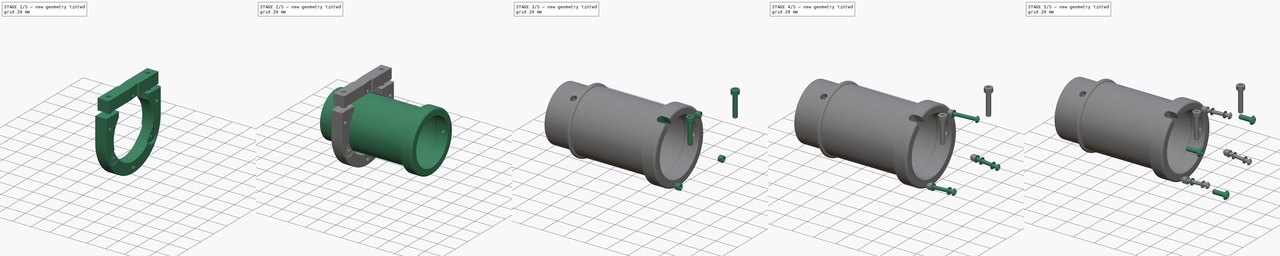
[diagram: build sequence overview — one tinted view per stage of 5, left to right]
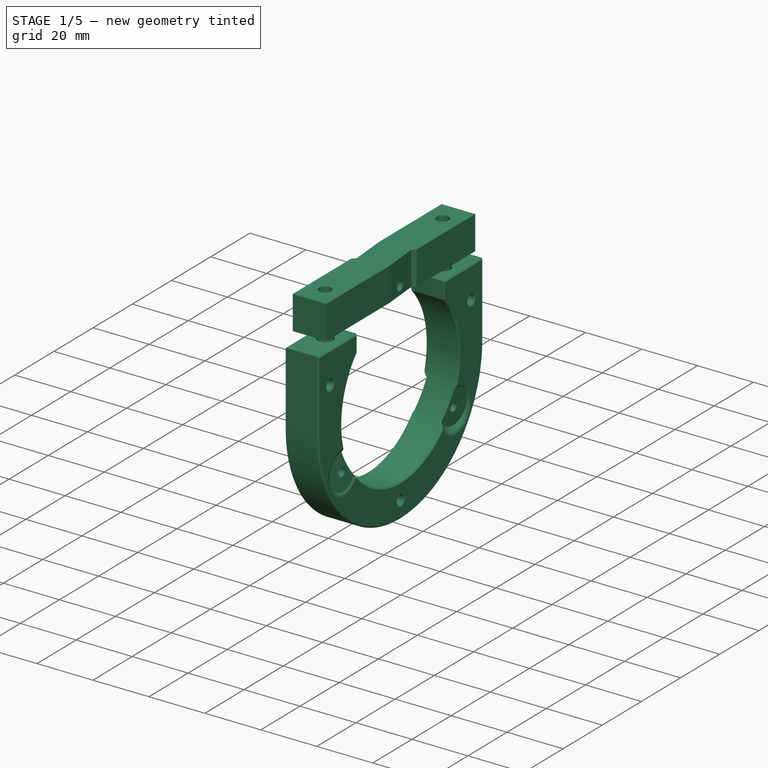
[diagram: stage 1 of 5 — iso view after this stage's code; geometry added in this stage tinted green]
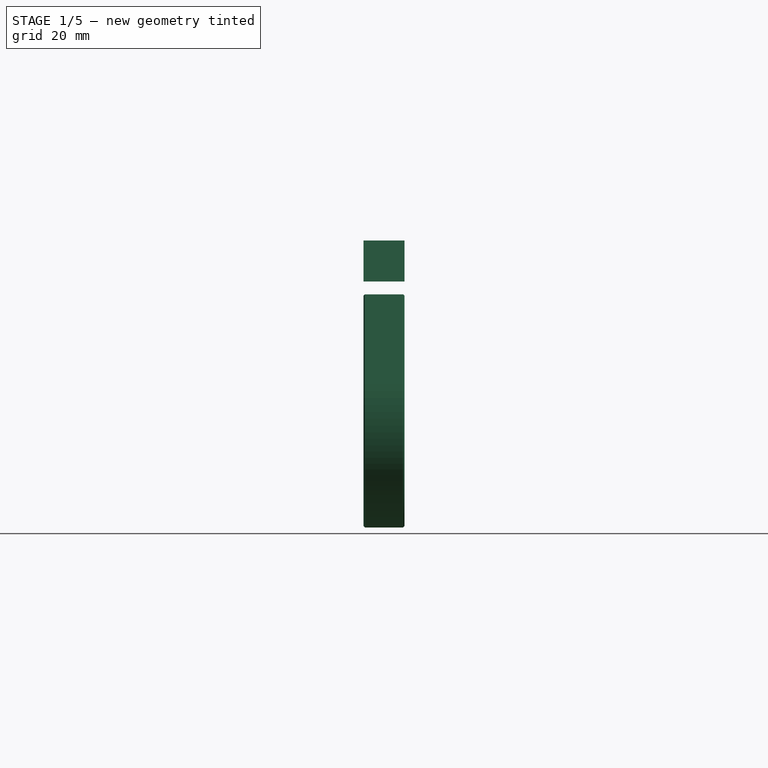
[diagram: stage 1 of 5 — front view after this stage's code; geometry added in this stage tinted green]
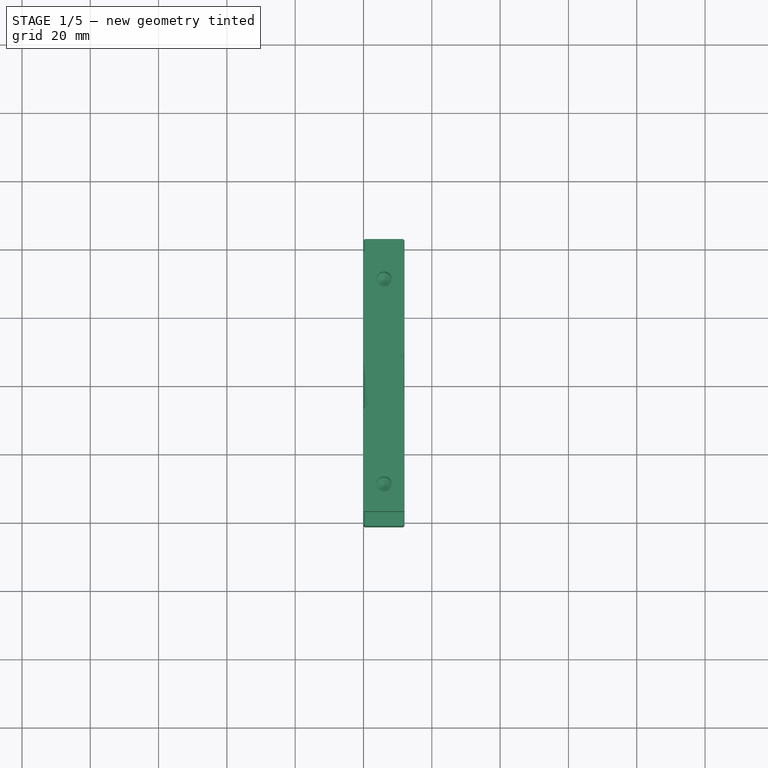
[diagram: stage 1 of 5 — top view after this stage's code; geometry added in this stage tinted green]
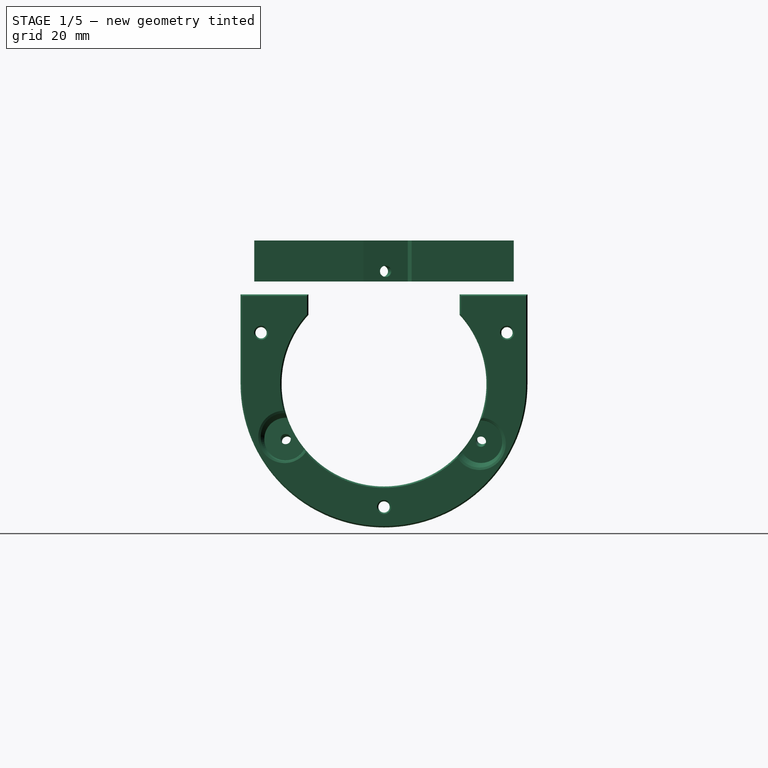
[diagram: stage 1 of 5 — right view after this stage's code; geometry added in this stage tinted green]
FCSTD DOCUMENT  (FreeCAD 0.21RUnknown)
Label: Focuser
License: All rights reserved
LicenseURL: http://en.wikipedia.org/wiki/All_rights_reserved
objects: PartDesign::CoordinateSystem×38, Sketcher::SketchObject×21, Part::FeaturePython×20, App::Link×19, PartDesign::Plane×12, PartDesign::Pocket×8, PartDesign::Body×7, PartDesign::Pad×4, PartDesign::Chamfer×4, PartDesign::Hole×3, App::DocumentObjectGroup×3, PartDesign::Revolution×2, PartDesign::PolarPattern×2, App::FeaturePython×1, App::Part×1, PartDesign::Line×1, PartDesign::Groove×1
note: 145 computed .brp shape members not serialized (recipe doc carries the construction recipe); baked Part::Feature solids carry a one-line shape summary decoded from their .brp
EXTERNAL_REF file=Common.FCStd obj=Spreadsheet
EXTERNAL_REF file=Common.FCStd obj=Local_CS193
EXTERNAL_REF file=Common.FCStd obj=Body022012
EXTERNAL_REF file=Common.FCStd obj=Local_CS194
EXTERNAL_REF file=Common.FCStd obj=Local_CS318
EXTERNAL_REF file=Common.FCStd obj=Body022061
EXTERNAL_REF file=Common.FCStd obj=Local_CS238
EXTERNAL_REF file=Common.FCStd obj=Body004
EXTERNAL_REF file=Common.FCStd obj=Local_CS237
EXTERNAL_REF file=Common.FCStd obj=Body005

FEATURE [Sketcher::SketchObject] Sketch023  label="FocuserSpring_Base_Sketch"
  FullyConstrained = true
  MapMode = 5
  Placement = pos=(0,0,0) rot=(0.57735,0.57735,0.57735;2.0944rad)
  Support = -> [YZ_Plane008]
  expr: Constraints[13] = <<Common>>#<<Parameters>>.foc_clampblock
  expr: Constraints[2] = <<Common>>#<<Parameters>>.foc_baseflange
  expr: Constraints[3] = <<Common>>#<<Parameters>>.foc_inner / 2 + <<Common>>#<<Parameters>>.foc_wall + <<Common>>#<<Parameters>>.foc_spacing
  expr: Constraints[4] = <<Common>>#<<Parameters>>.foc_springblock
  expr: Constraints[9] = <<Common>>#<<Parameters>>.fbearing_outer + <<Common>>#<<Parameters>>.sec_fthick * 4
  sketch-geometry (6):
    g0: LineSegment StartX=38 StartY=42 StartZ=0 EndX=38 EndY=30 EndZ=0
    g1: LineSegment StartX=-38 StartY=30 StartZ=0 EndX=-38 EndY=42 EndZ=0
    g2: LineSegment StartX=-22 StartY=30 StartZ=0 EndX=22 EndY=30 EndZ=0
    g3: LineSegment StartX=-11 StartY=42 StartZ=0 EndX=11 EndY=42 EndZ=0
    g4: LineSegment StartX=-38 StartY=42 StartZ=0 EndX=38 EndY=42 EndZ=0
    g5: LineSegment StartX=-38 StartY=30 StartZ=0 EndX=38 EndY=30 EndZ=0
  constraints (17):
    c: Vertical(g0)
    c: Vertical(g1)
    c: DistanceY(g0,g0) = 12
    c: DistanceY(g-1,g0) = 30
    c: DistanceX(g1,g0) = 76
    c: Symmetric(g0,g1,g-2)
    c: Symmetric(g2,g2,g-2)
    c: Symmetric(g3,g3,g-2)
    c: Equal(g0,g1)
    c: DistanceX(g3,g3) = 22
    c: Coincident(g4,g1)
    c: Coincident(g4,g0)
    c: PointOnObject(g3,g4)
    c: DistanceX(g1,g2) = 16
    c: Coincident(g5,g1)
    c: Coincident(g5,g0)
    c: PointOnObject(g2,g5)
FEATURE [PartDesign::Pad] Pad007  label="FocuserSpring_Base"
  Direction = (1,-2e-16,3e-16)
  Length = 12
  Length2 = 100
  Placement = pos=(0,0,0) rot=(0.57735,0.57735,0.57735;2.0944rad)
  Profile = -> Sketch023
  Type = 0
  expr: Length = <<Common>>#<<Parameters>>.foc_fheight
FEATURE [PartDesign::CoordinateSystem] Local_CS154  label="LCS_PlateMount_ZF"
  AttacherType = Attacher::AttachEngine3D
  AttachmentOffset = pos=(-90,71,0) rot=(0,0,1;3.14159rad)
  MapMode = 5
  Placement = pos=(-3.57e-14,-90,71) rot=(0.57735,-0.57735,0.57735;4.18879rad)
  Support = -> [YZ_Plane014]
  expr: .AttachmentOffset.Base.x = -<<Common>>#<<Parameters>>.sec_sidebolt_y
  expr: .AttachmentOffset.Base.y = <<Common>>#<<Parameters>>.sec_sidebolt_upper_z - <<Common>>#<<Parameters>>.mirror_distance
FEATURE [PartDesign::CoordinateSystem] Local_CS155  label="LCS_PlateMount_ZA"
  AttacherType = Attacher::AttachEngine3D
  AttachmentOffset = pos=(90,71,0) rot=(0,0,1;0rad)
  MapMode = 5
  Placement = pos=(4.2e-15,90,71) rot=(0.57735,0.57735,0.57735;2.0944rad)
  Support = -> [YZ_Plane014]
  expr: .AttachmentOffset.Base.x = <<Common>>#<<Parameters>>.sec_sidebolt_y
  expr: .AttachmentOffset.Base.y = <<Common>>#<<Parameters>>.sec_sidebolt_upper_z - <<Common>>#<<Parameters>>.mirror_distance
FEATURE [PartDesign::CoordinateSystem] Local_CS156  label="LCS_PlateMount_NF"
  AttacherType = Attacher::AttachEngine3D
  AttachmentOffset = pos=(-90,-44,0) rot=(0,0,1;3.14159rad)
  MapMode = 5
  Placement = pos=(-1.02e-14,-90,-44) rot=(0.57735,-0.57735,0.57735;4.18879rad)
  Support = -> [YZ_Plane014]
  expr: .AttachmentOffset.Base.x = -<<Common>>#<<Parameters>>.sec_sidebolt_y
  expr: .AttachmentOffset.Base.y = <<Common>>#<<Parameters>>.sec_sidebolt_lower_z - <<Common>>#<<Parameters>>.mirror_distance
FEATURE [PartDesign::CoordinateSystem] Local_CS157  label="LCS_PlateMount_NA"
  AttacherType = Attacher::AttachEngine3D
  AttachmentOffset = pos=(90,-44,0) rot=(0,0,1;0rad)
  MapMode = 5
  Placement = pos=(2.98e-14,90,-44) rot=(0.57735,0.57735,0.57735;2.0944rad)
  Support = -> [YZ_Plane014]
  expr: .AttachmentOffset.Base.x = <<Common>>#<<Parameters>>.sec_sidebolt_y
  expr: .AttachmentOffset.Base.y = <<Common>>#<<Parameters>>.sec_sidebolt_lower_z - <<Common>>#<<Parameters>>.mirror_distance
FEATURE [PartDesign::CoordinateSystem] Local_CS201  label="LCS_PlateBaseMount_N"
  AttacherType = Attacher::AttachEngine3D
  AttachmentOffset = pos=(0,-36,0) rot=(0,0,1;0rad)
  MapMode = 5
  Placement = pos=(8e-15,-8e-15,-36) rot=(0.57735,0.57735,0.57735;2.0944rad)
  Support = -> [YZ_Plane014]
  expr: .AttachmentOffset.Base.y = -<<Common>>#<<Parameters>>.foc_mbrad
FEATURE [PartDesign::Pocket] Pocket021  label="FocuserSpring_Cut"
  BaseFeature = -> Pad007
  Direction = (0,0,-1)
  Length = 5
  Length2 = 100
  Midplane = true
  Placement = pos=(0,0,0) rot=(0.57735,0.57735,0.57735;2.0944rad)
  Profile = -> Sketch065
  Type = 1
FEATURE [PartDesign::Pocket] Pocket022  label="FocuserSpring_Shaft"
  BaseFeature = -> Pocket021
  Direction = (-0.996195,-0.0871557,-2e-16)
  Length = 5
  Length2 = 100
  Midplane = true
  Placement = pos=(0,0,0) rot=(0.57735,0.57735,0.57735;2.0944rad)
  Profile = -> Sketch025
  Type = 1
FEATURE [PartDesign::Body] Body008  label="FocuserSpring"
  Group = -> [Sketch023,Pad007,Sketch065,Pocket021,DatumPlane008,Sketch025,Pocket022,Local_CS041,Local_CS134,Local_CS043,Local_CS135,Local_CS045,Local_CS046,Chamfer004]
  Origin = -> Origin008
  Placement = pos=(122.7,0,835) rot=(0,0,1;0rad)
  Tip = -> Chamfer004
  expr: .Placement.Base.x = <<Common>>#<<Parameters>>.bolt_x + <<Common>>#<<Parameters>>.sec_poledia / 2 + <<Common>>#<<Parameters>>.sec_clamptol
  expr: .Placement.Base.z = <<Common>>#<<Parameters>>.mirror_distance
FEATURE [Sketcher::SketchObject] Sketch021  label="FocuserBase_Ring_Sketch"
  FullyConstrained = true
  MapMode = 5
  Placement = pos=(0,0,0) rot=(0.57735,0.57735,0.57735;2.0944rad)
  Support = -> [YZ_Plane057]
  expr: .Constraints.flange_inner = <<Common>>#<<Parameters>>.foc_inner / 2 + <<Common>>#<<Parameters>>.foc_wall + <<Common>>#<<Parameters>>.foc_spacing
  expr: .Constraints.flange_outer = .Constraints.flange_inner + <<Common>>#<<Parameters>>.foc_baseflange * 1 mm
  expr: Constraints[20] = <<Common>>#<<Parameters>>.foc_fthick * 1.5
  expr: Constraints[26] = max(<<Common>>#<<Parameters>>.foc_springblock * 1 mm; .Constraints.flange_outer * 2)
  expr: Constraints[30] = <<Common>>#<<Parameters>>.sec_fthick * 2
  sketch-geometry (14):
    g0: Circle CenterX=0 CenterY=0 CenterZ=0 NormalX=0 NormalY=0 NormalZ=1 AngleXU=0 Radius=30
    g1: Circle CenterX=0 CenterY=0 CenterZ=0 NormalX=0 NormalY=0 NormalZ=1 AngleXU=0 Radius=42
    g2: LineSegment StartX=0 StartY=0 StartZ=0 EndX=36.3731 EndY=-21 EndZ=0
    g3: LineSegment StartX=0 StartY=0 StartZ=0 EndX=-36.3731 EndY=-21 EndZ=0
    g4: LineSegment StartX=-42 StartY=26.25 StartZ=0 EndX=-22.1345 EndY=26.25 EndZ=0
    g5: LineSegment StartX=22.1345 StartY=26.25 StartZ=0 EndX=42 EndY=26.25 EndZ=0
    g6: LineSegment StartX=-42 StartY=26.25 StartZ=0 EndX=-42 EndY=8.27963e-05 EndZ=0
    g7: LineSegment StartX=-22.1345 StartY=26.25 StartZ=0 EndX=-22.1345 EndY=20.25 EndZ=0
    g8: LineSegment StartX=22.1345 StartY=26.25 StartZ=0 EndX=22.1345 EndY=20.25 EndZ=0
    g9: LineSegment StartX=42 StartY=26.25 StartZ=0 EndX=42 EndY=8.27947e-05 EndZ=0
    g10: GeomPoint X=0 Y=30 Z=0
    g11: ArcOfCircle CenterX=0 CenterY=0 CenterZ=0 NormalX=0 NormalY=0 NormalZ=1 AngleXU=0 Radius=30 StartAngle=2.40063 EndAngle=7.02415
    g12: ArcOfCircle CenterX=0 CenterY=0 CenterZ=0 NormalX=0 NormalY=0 NormalZ=1 AngleXU=0 Radius=42 StartAngle=3.14159 EndAngle=4.71239
    g13: ArcOfCircle CenterX=0 CenterY=0 CenterZ=0 NormalX=0 NormalY=0 NormalZ=1 AngleXU=0 Radius=42 StartAngle=4.71239 EndAngle=6.28319
  constraints (37):
    c: Coincident(g0,g-1)
    c: Coincident(g1,g0)
    c: Radius(g0) = 30  'flange_inner'
    c: Radius(g1) = 42  'flange_outer'
    c: Coincident(g2,g0)
    c: Coincident(g3,g0)
    c: PointOnObject(g2,g1)
    c: Angle(g3,g2) = 2.0944
    c: Horizontal(g4)
    c: Horizontal(g5)
    c: Coincident(g6,g4)
    c: Coincident(g7,g4)
    c: Vertical(g7)
    c: Coincident(g8,g5)
    c: Vertical(g8)
    c: Coincident(g9,g5)
    c: Symmetric(g4,g5,g-2)
    c: Equal(g4,g5)
    c: PointOnObject(g10,g0)
    c: PointOnObject(g10,g-2)
    c: DistanceY(g4,g10) = 3.75
    c: Coincident(g11,g-1)
    c: Coincident(g12,g11)
    c: Coincident(g12,g6)
    c: Coincident(g13,g11)
    c: Coincident(g13,g9)
    c: DistanceX(g4,g5) = 84
    c: Equal(g12,g1)
    c: Tangent(g6,g12)
    c: Tangent(g9,g13)
    c: DistanceY(g7,g7) = 6
    c: Coincident(g11,g7)
    c: Coincident(g11,g8)
    c: PointOnObject(g7,g0)
    c: Coincident(g13,g12)
    c: PointOnObject(g12,g-2)
    c: Symmetric(g3,g2,g-2)
FEATURE [PartDesign::Pad] Pad006  label="FocuserBase_Ring"
  Direction = (1,-2e-16,3e-16)
  Length = 12
  Length2 = 100
  Placement = pos=(0,0,0) rot=(0.57735,0.57735,0.57735;2.0944rad)
  Profile = -> Sketch021
  Type = 0
  expr: Length = <<Common>>#<<Parameters>>.foc_fheight
FEATURE [PartDesign::Plane] DatumPlane015  label="FocuserBase_DatumPlane_SideCut"
  AttachmentOffset = pos=(6,28.5788,-16.5) rot=(1,0,0;1.0472rad)
  Length = 64.2201
  MapMode = 2
  Placement = pos=(6,28.5788,-16.5) rot=(1,0,0;1.0472rad)
  ResizeMode = 0
  Support = -> [XY_Plane057]
  Width = 115.326
  expr: .AttachmentOffset.Base.x = <<Common>>#<<Parameters>>.foc_fheight / 2
  expr: .AttachmentOffset.Base.y = (<<Common>>#<<Parameters>>.foc_inner / 2 + <<Common>>#<<Parameters>>.foc_wall + <<Common>>#<<Parameters>>.fbearing_outer / 2) * sin(60)
  expr: .AttachmentOffset.Base.z = -(<<Common>>#<<Parameters>>.foc_inner / 2 + <<Common>>#<<Parameters>>.foc_wall + <<Common>>#<<Parameters>>.fbearing_outer / 2) * cos(60)
FEATURE [PartDesign::Plane] DatumPlane016  label="FocuserBase_DatumPlane_SideShaft"
  AttachmentOffset = pos=(0,0,0) rot=(0,-1,0;0.087266rad)
  Length = 126.274
  MapMode = 4
  Placement = pos=(6,28.5788,-16.5) rot=(0.725486,0.178129,0.664786;2.75759rad)
  ResizeMode = 0
  Support = -> [DatumPlane015]
  Width = 128.065
  expr: .AttachmentOffset.Rotation.Pitch = -<<Common>>#<<Parameters>>.fbearing_tilt
FEATURE [PartDesign::Plane] DatumPlane011  label="FocuserBase_DatumPlane_SpringShaft"
  AttachmentOffset = pos=(6,0,26.25) rot=(0,0,1;0rad)
  Length = 62.9615
  MapMode = 5
  Placement = pos=(6,0,26.25) rot=(0,0,1;0rad)
  ResizeMode = 0
  Support = -> [XY_Plane057]
  Width = 96.9615
  expr: .AttachmentOffset.Base.x = <<Common>>#<<Parameters>>.foc_fheight / 2
  expr: .AttachmentOffset.Base.z = <<Common>>#<<Parameters>>.foc_inner / 2 + <<Common>>#<<Parameters>>.foc_wall + <<Common>>#<<Parameters>>.foc_spacing - <<Common>>#<<Parameters>>.foc_fthick * 1.5
FEATURE [Sketcher::SketchObject] Sketch067  label="FocuserBase_SpringShaft_Sketch"
  FullyConstrained = true
  MapMode = 5
  Placement = pos=(6,0,26.25) rot=(0,0,1;0rad)
  Support = -> [DatumPlane011]
  expr: Constraints[0] = <<Common>>#<<Parameters>>.sec_sidebolt * 1.1
  expr: Constraints[3] = <<Common>>#<<Parameters>>.foc_springblock - <<Common>>#<<Parameters>>.foc_clampblock
  sketch-geometry (2):
    g0: Circle CenterX=0 CenterY=30 CenterZ=0 NormalX=0 NormalY=0 NormalZ=1 AngleXU=0 Radius=2.2
    g1: Circle CenterX=0 CenterY=-30 CenterZ=0 NormalX=0 NormalY=0 NormalZ=1 AngleXU=0 Radius=2.2
  constraints (5):
    c: Diameter(g1) = 4.4
    c: Equal(g1,g0)
    c: Symmetric(g1,g0,g-1)
    c: DistanceY(g1,g0) = 60
    c: PointOnObject(g0,g-2)
FEATURE [PartDesign::Plane] DatumPlane017  label="FocuserBase_DatumPlane_FrontFace"
  AttachmentOffset = pos=(0,0,12) rot=(0,0,1;0rad)
  Length = 99.1433
  MapMode = 5
  Placement = pos=(12,-2.7e-15,2.7e-15) rot=(0.57735,0.57735,0.57735;2.0944rad)
  ResizeMode = 0
  Support = -> [YZ_Plane057]
  Width = 83.3933
  expr: .AttachmentOffset.Base.z = <<Common>>#<<Parameters>>.foc_fheight
FEATURE [PartDesign::CoordinateSystem] Local_CS130  label="LCS_TubeDatum"
  AttacherType = Attacher::AttachEngine3D
  AttachmentOffset = pos=(0,0,-12) rot=(0,0,1;0rad)
  MapMode = 5
  Placement = pos=(-12,2.7e-15,-2.7e-15) rot=(0.57735,0.57735,0.57735;2.0944rad)
  Support = -> [YZ_Plane057]
  expr: .AttachmentOffset.Base.z = -<<Common>>#<<Parameters>>.foc_fheight
FEATURE [Sketcher::SketchObject] Sketch077  label="FocuserBase_MountHoles_Sketch"
  FullyConstrained = true
  MapMode = 5
  Placement = pos=(12,-2.7e-15,2.7e-15) rot=(0.57735,0.57735,0.57735;2.0944rad)
  Support = -> [DatumPlane017]
  expr: Constraints[2] = <<Common>>#<<Parameters>>.sec_collbolt
  expr: Constraints[5] = <<Common>>#<<Parameters>>.foc_mbrad
  expr: Constraints[6] = <<Common>>#<<Parameters>>.foc_mbrad - <<Common>>#<<Parameters>>.foc_baseflange / 2 - <<Common>>#<<Parameters>>.sec_fthick - <<Common>>#<<Parameters>>.sec_sidebolt * 3
  expr: Constraints[7] = <<Common>>#<<Parameters>>.foc_mbrad
  sketch-geometry (3):
    g0: Circle CenterX=0 CenterY=-36 CenterZ=0 NormalX=0 NormalY=0 NormalZ=1 AngleXU=0 Radius=2
    g1: Circle CenterX=-36 CenterY=15 CenterZ=0 NormalX=0 NormalY=0 NormalZ=1 AngleXU=0 Radius=2
    g2: Circle CenterX=36 CenterY=15 CenterZ=0 NormalX=0 NormalY=0 NormalZ=1 AngleXU=0 Radius=2
  constraints (8):
    c: Symmetric(g1,g2,g-2)
    c: PointOnObject(g0,g-2)
    c: Diameter(g0) = 4
    c: Equal(g0,g1)
    c: Equal(g0,g2)
    c: DistanceY(g0,g-1) = 36
    c: DistanceY(g2) = 15
    c: DistanceX(g2) = 36
FEATURE [PartDesign::CoordinateSystem] Local_CS137  label="LCS_FocuserBase_MountN"
  AttacherType = Attacher::AttachEngine3D
  AttachmentOffset = pos=(0,-36,0) rot=(0,0,1;1.5708rad)
  MapMode = 5
  Placement = pos=(12,-6.7e-15,-36) rot=(0.707107,0,0.707107;3.14159rad)
  Support = -> [DatumPlane017]
  expr: .AttachmentOffset.Base.y = -<<Common>>#<<Parameters>>.foc_mbrad
FEATURE [PartDesign::Plane] DatumPlane027  label="FocuserBase_DatumPlane_NutCut"
  AttachmentOffset = pos=(0,0,-3) rot=(0,0,1;0rad)
  Length = 62.9615
  MapMode = 2
  Placement = pos=(6,0,23.25) rot=(0,0,1;0rad)
  ResizeMode = 0
  Support = -> [DatumPlane011]
  Width = 96.9615
  expr: .AttachmentOffset.Base.z = -<<Common>>#<<Parameters>>.sec_fthick
FEATURE [PartDesign::Line] DatumLine002  label="FocuserBase_DatumLine_SideShaft"
  AttacherType = Attacher::AttachEngineLine
  Length = 20
  MapMode = 18
  Placement = pos=(6,28.5788,-16.5) rot=(0.725486,0.178129,0.664786;2.75759rad)
  ResizeMode = 0
  Support = -> [DatumPlane016]
FEATURE [Sketcher::SketchObject] Sketch066  label="FocuserBase_SideCut_Sketch"
  ExternalGeometry = -> [Pad006,DatumLine002]
  FullyConstrained = true
  MapMode = 5
  Placement = pos=(6,28.5788,-16.5) rot=(1,0,0;1.0472rad)
  Support = -> [DatumPlane015]
  expr: Constraints[37] = (<<Common>>#<<Parameters>>.fbearing_outer + <<Common>>#<<Parameters>>.foc_fthick) / 2
  expr: Constraints[38] = <<Common>>#<<Parameters>>.fbearing_inner / 2
  sketch-geometry (21):
    g0: LineSegment StartX=-6.4 StartY=8.92025 StartZ=0 EndX=-7.12588 EndY=0.623433 EndZ=0
    g1: LineSegment StartX=5.6 StartY=5.78394 StartZ=0 EndX=7.85175 EndY=7.67338 EndZ=0
    g2: LineSegment StartX=7.85175 StartY=7.67338 StartZ=0 EndX=7.12588 EndY=-0.623433 EndZ=0
    g3: LineSegment StartX=-4.51055 StartY=6.6685 StartZ=0 EndX=5.6 EndY=5.78394 EndZ=0
    g4: LineSegment StartX=-6.4 StartY=8.92025 StartZ=0 EndX=-4.51055 EndY=6.6685 EndZ=0
    g5: LineSegment StartX=-4.92454 StartY=1.93657 StartZ=0 EndX=-4.51055 EndY=6.6685 EndZ=0
    g6: LineSegment StartX=5.18601 StartY=1.05201 StartZ=0 EndX=5.6 EndY=5.78394 EndZ=0
    g7: LineSegment StartX=4.51055 StartY=-6.6685 StartZ=0 EndX=6.4 EndY=-8.92025 EndZ=0
    g8: LineSegment StartX=-5.6 StartY=-5.78394 StartZ=0 EndX=4.51055 EndY=-6.6685 EndZ=0
    g9: LineSegment StartX=-4.92454 StartY=1.93657 StartZ=0 EndX=5.18601 EndY=1.05201 EndZ=0
    g10: LineSegment StartX=-7.12588 StartY=0.623433 StartZ=0 EndX=7.12588 EndY=-0.623433 EndZ=0
    g11: LineSegment StartX=-5.05528 StartY=0.442279 StartZ=0 EndX=-5.6 EndY=-5.78394 EndZ=0
    g12: LineSegment StartX=-5.05528 StartY=0.442279 StartZ=0 EndX=-4.92454 EndY=1.93657 EndZ=0
    g13: LineSegment StartX=7.12588 StartY=-0.623433 StartZ=0 EndX=6.4 EndY=-8.92025 EndZ=0
    g14: LineSegment StartX=-7.12588 StartY=0.623433 StartZ=0 EndX=-7.85175 EndY=-7.67338 EndZ=0
    g15: LineSegment StartX=-7.85175 StartY=-7.67338 StartZ=0 EndX=-5.6 EndY=-5.78394 EndZ=0
    g16: LineSegment StartX=5.6 StartY=5.78394 StartZ=0 EndX=6 EndY=5.78394 EndZ=0
    g17: LineSegment StartX=-6.4 StartY=8.92025 StartZ=0 EndX=-6 EndY=8.92025 EndZ=0
    g18: LineSegment StartX=-6 StartY=-5.78394 StartZ=0 EndX=-5.6 EndY=-5.78394 EndZ=0
    g19: LineSegment StartX=6.4 StartY=-8.92025 StartZ=0 EndX=6 EndY=-8.92025 EndZ=0
    g20: LineSegment StartX=5.18601 StartY=1.05201 StartZ=0 EndX=4.51055 EndY=-6.6685 EndZ=0
  constraints (59):
    c: Coincident(g4,g0)
    c: Parallel(g3,g-5)
    c: Coincident(g5,g4)
    c: Coincident(g5,g3)
    c: Coincident(g6,g1)
    c: Coincident(g6,g3)
    c: Coincident(g1,g2)
    c: Parallel(g5,g0)
    c: Parallel(g6,g2)
    c: Angle(g4,g5) = 2.35619
    c: Parallel(g8,g-5)
    c: Perpendicular(g-5,g0)
    c: Angle(g6,g1) = 2.35619
    c: Parallel(g5,g6)
    c: Equal(g5,g6)
    c: Coincident(g9,g5)
    c: Coincident(g9,g6)
    c: Coincident(g10,g0)
    c: Coincident(g10,g2)
    c: PointOnObject(g0,g-5)
    c: PointOnObject(g2,g-5)
    c: PointOnObject(g11,g10)
    c: Coincident(g11,g8)
    c: Coincident(g12,g11)
    c: Coincident(g12,g5)
    c: Coincident(g13,g2)
    c: Coincident(g13,g7)
    c: Coincident(g7,g8)
    c: PointOnObject(g11,g5)
    c: Equal(g13,g2)
    c: Equal(g2,g0)
    c: Coincident(g14,g0)
    c: Coincident(g15,g14)
    c: Coincident(g15,g8)
    c: PointOnObject(g14,g0)
    c: Parallel(g15,g1)
    c: Parallel(g7,g4)
    c: Distance(g11) = 6.25
    c: Distance(g12) = 1.5
    c: Coincident(g16,g1)
    c: PointOnObject(g16,g-3)
    c: Horizontal(g16)
    c: Coincident(g17,g0)
    c: PointOnObject(g17,g-4)
    c: Horizontal(g17)
    c: PointOnObject(g18,g-4)
    c: Coincident(g18,g8)
    c: Horizontal(g18)
    c: Coincident(g19,g7)
    c: PointOnObject(g19,g-3)
    c: Horizontal(g19)
    c: Equal(g19,g16)
    c: Equal(g16,g17)
    c: Equal(g17,g18)
    c: Parallel(g11,g12)
    c: Coincident(g20,g6)
    c: Coincident(g20,g7)
    c: Parallel(g20,g6)
    c: DistanceX(g17,g17) = 0.4
FEATURE [PartDesign::Groove] Groove  label="FocuserBase_SideCut"
  Angle = 360
  Axis = (0.996195,-0.0435779,-0.0754791)
  Base = (6,28.5788,-16.5)
  BaseFeature = -> Pad006
  Placement = pos=(0,0,0) rot=(0.57735,0.57735,0.57735;2.0944rad)
  Profile = -> Sketch066
  ReferenceAxis = -> DatumLine002
FEATURE [PartDesign::PolarPattern] PolarPattern  label="FocuserBase_PolarPattern"
  Angle = 360
  Axis = -> X_Axis057
  BaseFeature = -> Groove
  Occurrences = 3
  Originals = -> [Groove]
  Placement = pos=(0,0,0) rot=(0.57735,0.57735,0.57735;2.0944rad)
FEATURE [PartDesign::CoordinateSystem] Local_CS033  label="LCS_Bearing_Inner_NF"
  AttacherType = Attacher::AttachEngine3D
  MapMode = 11
  Placement = pos=(0.944723,-28.3577,-16.883) rot=(0.663579,-0.401957,-0.630947;2.47638rad)
  Support = -> [PolarPattern]
FEATURE [PartDesign::CoordinateSystem] Local_CS034  label="LCS_Bearing_Inner_NA"
  AttacherType = Attacher::AttachEngine3D
  MapMode = 11
  Placement = pos=(0.944723,28.8,-16.117) rot=(-0.644711,-0.352973,0.678055;2.36216rad)
  Support = -> [PolarPattern]
FEATURE [PartDesign::CoordinateSystem] Local_CS035  label="LCS_Bearing_Outer_NF"
  AttacherType = Attacher::AttachEngine3D
  MapMode = 11
  Placement = pos=(11.0553,-28.8,-16.117) rot=(0.644711,0.352973,0.678055;2.36216rad)
  Support = -> [PolarPattern]
FEATURE [PartDesign::CoordinateSystem] Local_CS036  label="LCS_Bearing_Outer_NA"
  AttacherType = Attacher::AttachEngine3D
  MapMode = 11
  Placement = pos=(11.0553,28.3577,-16.883) rot=(0.663579,-0.401957,0.630947;3.8068rad)
  Support = -> [PolarPattern]
FEATURE [PartDesign::Hole] Hole  label="FocuserBase_SpringShaft"
  BaseFeature = -> PolarPattern
  CustomThreadClearance = 0
  Depth = 8
  DepthType = 0
  Diameter = 4.5
  DrillForDepth = false
  DrillPoint = 1
  DrillPointAngle = 118
  HoleCutCountersinkAngle = 90
  HoleCutCustomValues = false
  HoleCutDepth = 4
  HoleCutDiameter = 5.6
  HoleCutType = 1
  ModelThread = false
  Placement = pos=(0,0,0) rot=(0.57735,0.57735,0.57735;2.0944rad)
  Profile = -> Sketch067
  Tapered = false
  TaperedAngle = 90
  ThreadClass = 0
  ThreadDepth = 8
  ThreadDepthType = 0
  ThreadDirection = 0
  ThreadFit = 0
  ThreadSize = 11
  ThreadType = 1
  Threaded = false
  UseCustomThreadClearance = false
  expr: HoleCutDiameter = Common#<<Parameters>>.acc_M4Bore
FEATURE [PartDesign::CoordinateSystem] Local_CS037  label="LCS_SpringNut_F"
  AttacherType = Attacher::AttachEngine3D
  MapMode = 11
  Placement = pos=(6,-30,26.25) rot=(0,0,1;3.14159rad)
  Support = -> [Hole]
FEATURE [PartDesign::CoordinateSystem] Local_CS038  label="LCS_SpringNut_A"
  AttacherType = Attacher::AttachEngine3D
  MapMode = 11
  Placement = pos=(6,30,26.25) rot=(0,0,1;3.14159rad)
  Support = -> [Hole]
FEATURE [PartDesign::CoordinateSystem] Local_CS132  label="LCS_SpringAttachment_F"
  AttacherType = Attacher::AttachEngine3D
  AttachmentOffset = pos=(0,0,3.75) rot=(0,0,1;0rad)
  MapMode = 11
  Placement = pos=(6,-30,30) rot=(0,0,1;3.14159rad)
  Support = -> [Hole]
  expr: .AttachmentOffset.Base.z = <<Common>>#<<Parameters>>.foc_fthick * 1.5
FEATURE [PartDesign::CoordinateSystem] Local_CS133  label="LCS_SpringAttachment_A"
  AttacherType = Attacher::AttachEngine3D
  AttachmentOffset = pos=(0,0,3.75) rot=(0,0,1;0rad)
  MapMode = 11
  Placement = pos=(6,30,30) rot=(0,0,1;3.14159rad)
  Support = -> [Hole]
  expr: .AttachmentOffset.Base.z = <<Common>>#<<Parameters>>.foc_fthick * 1.5
FEATURE [PartDesign::Hole] Hole051  label="FocuserBase_MountHoles"
  BaseFeature = -> Hole
  CustomThreadClearance = 0
  Depth = 219.967
  DepthType = 1
  Diameter = 3.3
  DrillForDepth = false
  DrillPoint = 1
  DrillPointAngle = 118
  HoleCutCountersinkAngle = 90
  HoleCutCustomValues = false
  HoleCutDepth = 0
  HoleCutDiameter = 6.1
  HoleCutType = 0
  ModelThread = false
  Placement = pos=(0,0,0) rot=(0.57735,0.57735,0.57735;2.0944rad)
  Profile = -> Sketch077
  Tapered = false
  TaperedAngle = 90
  ThreadClass = 0
  ThreadDepth = 219.967
  ThreadDepthType = 0
  ThreadDirection = 0
  ThreadFit = 0
  ThreadSize = 11
  ThreadType = 1
  Threaded = true
  UseCustomThreadClearance = false
FEATURE [PartDesign::Chamfer] Chamfer  label="FocuserBase_Chamfer"
  Angle = 45
  Base = -> Hole051 [Face5,Face4]
  BaseFeature = -> Hole051
  ChamferType = 0
  FlipDirection = false
  Placement = pos=(0,0,0) rot=(0.57735,0.57735,0.57735;2.0944rad)
  Size = 0.4
  Size2 = 1
  SupportTransform = false
  UseAllEdges = false
FEATURE [PartDesign::Body] Body022004  label="FocuserBase"
  Group = -> [Sketch021,Pad006,DatumPlane015,Sketch066,DatumPlane016,DatumPlane011,Sketch067,DatumPlane017,Local_CS130,Local_CS033,Local_CS034,Local_CS035,Local_CS036,Local_CS037,Local_CS038,Local_CS132,Local_CS133,Sketch077,Local_CS137,DatumPlane027,DatumLine002,Groove,PolarPattern,Hole,Hole051,Chamfer]
  Origin = -> Origin057
  Placement = pos=(123,0,835) rot=(0,0,1;0rad)
  Tip = -> Chamfer
  expr: .Placement.Base.x = <<Common>>#<<Parameters>>.bolt_x + <<Common>>#<<Parameters>>.sec_poledia / 2 + <<Common>>#<<Parameters>>.sec_spthick
  expr: .Placement.Base.z = <<Common>>#<<Parameters>>.mirror_distance
FEATURE [PartDesign::Body] Body022030  label="FocuserBaseCompat"
  Origin = -> Origin083
  Placement = pos=(123,0,835) rot=(0,0,1;0rad)
  expr: .Placement.Base.x = <<Common>>#<<Parameters>>.bolt_x + <<Common>>#<<Parameters>>.sec_poledia / 2 + <<Common>>#<<Parameters>>.sec_spthick
  expr: .Placement.Base.z = <<Common>>#<<Parameters>>.mirror_distance
FEATURE [App::DocumentObjectGroup] Parts
  Group = -> [Body022004,Body008,Body007,Body022005,Body022023,Body022029,Body022030]

RESOLVED EXTERNAL PARTS (link-assembly join: the EXTERNAL_REF files above that resolve inside this repo's crawl, each included once):
---- part Common.FCStd = doc fcstd_f532bfd99702 (72826 chars; too large to inline — full recipe in that document) ----
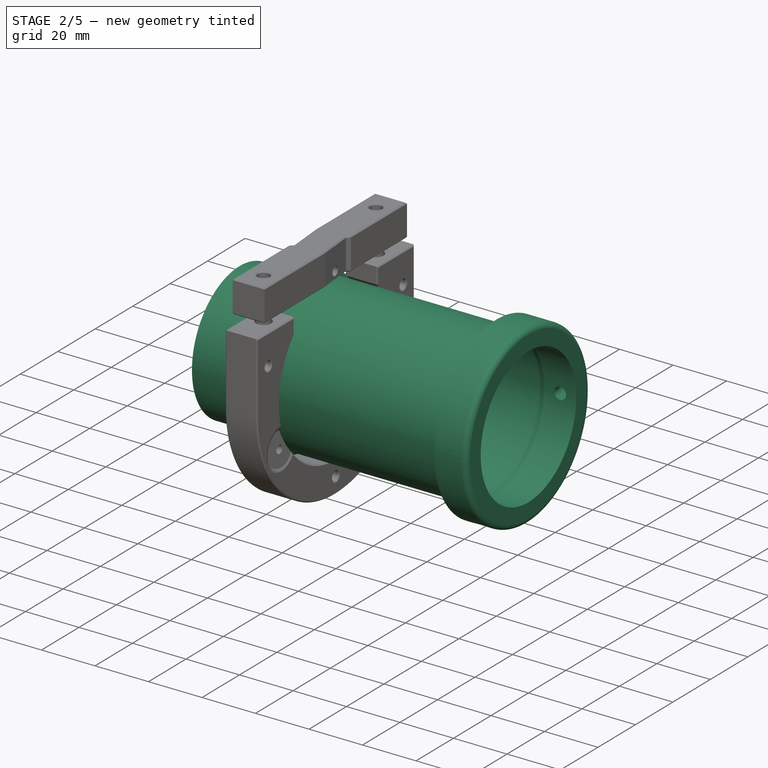
[diagram: stage 2 of 5 — iso view after this stage's code; geometry added in this stage tinted green]
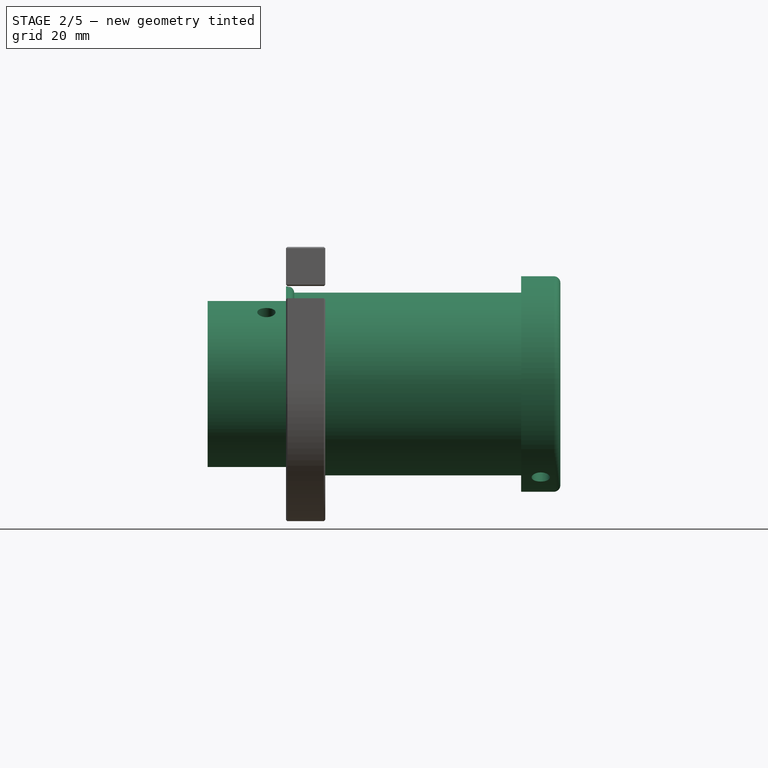
[diagram: stage 2 of 5 — front view after this stage's code; geometry added in this stage tinted green]
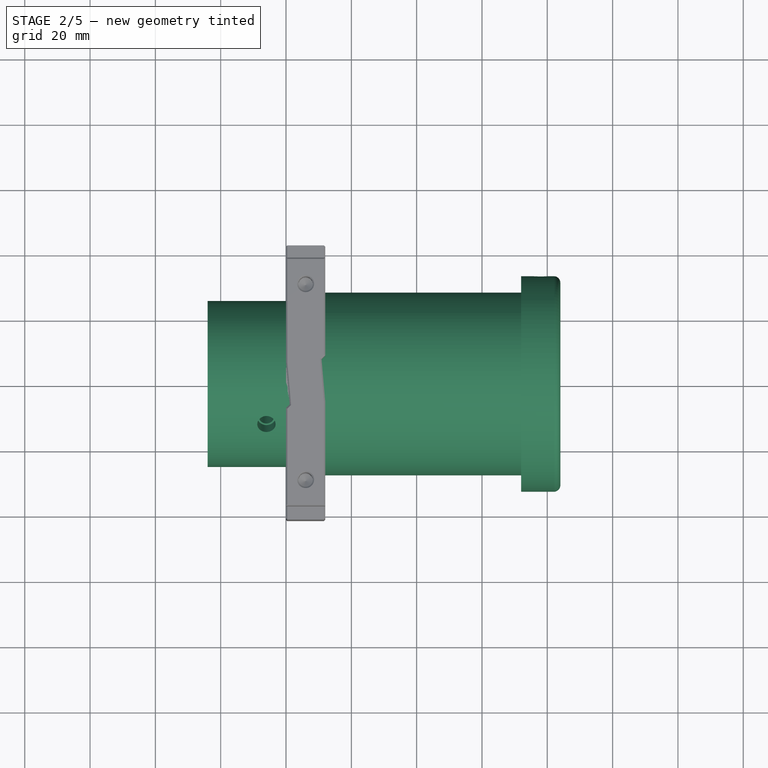
[diagram: stage 2 of 5 — top view after this stage's code; geometry added in this stage tinted green]
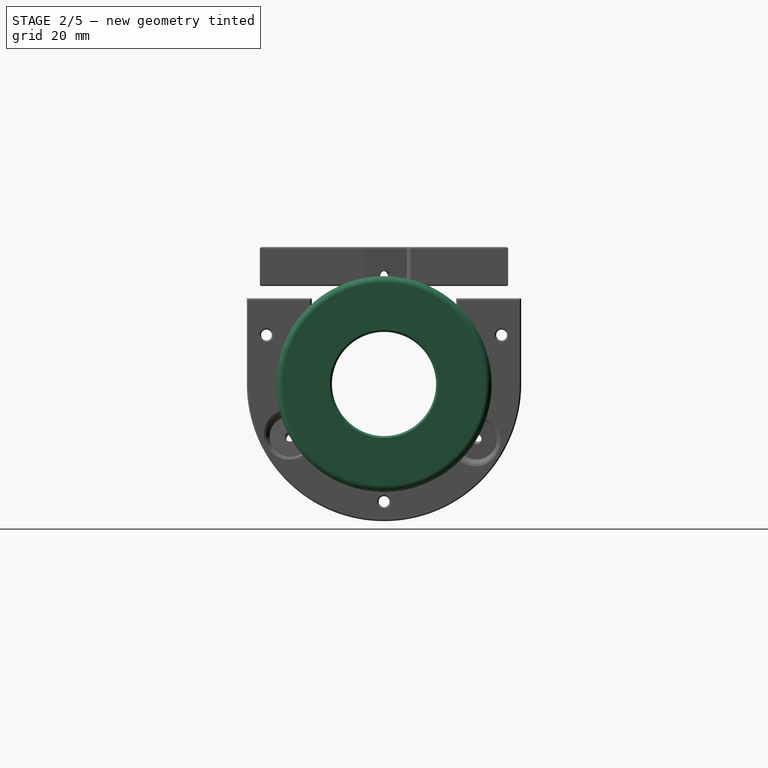
[diagram: stage 2 of 5 — right view after this stage's code; geometry added in this stage tinted green]
FEATURE [Sketcher::SketchObject] Sketch065  label="FocuserSpring_Cut_Sketch"
  FullyConstrained = false
  MapMode = 5
  Support = -> [XY_Plane008]
  expr: Constraints[18] = <<Common>>#<<Parameters>>.fbearing_outer + <<Common>>#<<Parameters>>.sec_fthick
  expr: Constraints[1] = <<Common>>#<<Parameters>>.sec_sidebolt * 1.1
  expr: Constraints[28] = <<Common>>#<<Parameters>>.foc_fheight / 2
  expr: Constraints[2] = <<Common>>#<<Parameters>>.foc_springblock - <<Common>>#<<Parameters>>.foc_clampblock
  expr: Constraints[35] = <<Common>>#<<Parameters>>.fbearing_tilt
  expr: Constraints[4] = <<Common>>#<<Parameters>>.foc_fheight / 2
  sketch-geometry (14):
    g0: Circle CenterX=6 CenterY=30 CenterZ=0 NormalX=0 NormalY=0 NormalZ=1 AngleXU=0 Radius=2.2
    g1: Circle CenterX=6 CenterY=-30 CenterZ=0 NormalX=0 NormalY=0 NormalZ=1 AngleXU=0 Radius=2.2
    g2: GeomPoint X=6 Y=0 Z=0
    g3: LineSegment StartX=10.867 StartY=6.95063 StartZ=0 EndX=13 EndY=9.08366 EndZ=0
    g4: LineSegment StartX=13 StartY=9.08366 StartZ=0 EndX=13 EndY=-5.9999 EndZ=0
    g5: LineSegment StartX=13 StartY=-5.9999 StartZ=0 EndX=12 EndY=-5.9999 EndZ=0
    g6: LineSegment StartX=12 StartY=-5.9999 StartZ=0 EndX=10.867 EndY=6.95063 EndZ=0
    g7: LineSegment StartX=0 StartY=5.9999 StartZ=0 EndX=-1 EndY=5.9999 EndZ=0
    g8: LineSegment StartX=-1 StartY=5.9999 StartZ=0 EndX=-1 EndY=-9.08366 EndZ=0
    g9: LineSegment StartX=-1 StartY=-9.08366 StartZ=0 EndX=1.13302 EndY=-6.95063 EndZ=0
    g10: LineSegment StartX=1.13302 StartY=-6.95063 StartZ=0 EndX=0 EndY=5.9999 EndZ=0
    g11: LineSegment StartX=0.566512 StartY=-0.475369 StartZ=0 EndX=11.4335 EndY=0.475369 EndZ=0
    g12: GeomPoint X=0 Y=-8.08366 Z=0
    g13: GeomPoint X=12 Y=8.08366 Z=0
  constraints (36):
    c: Equal(g0,g1)
    c: Diameter(g1) = 4.4
    c: DistanceY(g1,g0) = 60
    c: Symmetric(g0,g1,g-1)
    c: DistanceX(g0) = 6
    c: Coincident(g3,g4)
    c: Coincident(g4,g5)
    c: Coincident(g5,g6)
    c: Coincident(g6,g3)
    c: Horizontal(g5)
    c: Vertical(g4)
    c: Coincident(g7,g8)
    c: Coincident(g8,g9)
    c: Coincident(g9,g10)
    c: Coincident(g10,g7)
    c: Horizontal(g7)
    c: Vertical(g8)
    c: Parallel(g9,g3)
    c: Distance(g6) = 13
    c: Equal(g6,g10)
    c: PointOnObject(g11,g10)
    c: PointOnObject(g11,g6)
    c: Symmetric(g5,g3,g11)
    c: Symmetric(g7,g9,g11)
    c: Equal(g7,g5)
    c: DistanceX(g5,g5) = 1
    c: PointOnObject(g2,g-1)
    c: PointOnObject(g2,g11)
    c: DistanceX(g-1,g2) = 6
    c: PointOnObject(g12,g9)
    c: PointOnObject(g13,g3)
    c: DistanceY(g12,g13) = 16.1673
    c: PointOnObject(g7,g-2)
    c: PointOnObject(g12,g-2)
    c: Angle(g9,g8) = 0.785398
    c: Angle(g-2,g10) = 0.0872665
FEATURE [PartDesign::Plane] DatumPlane008  label="FocuserSpring_DatumPlane_Shaft"
  AttachmentOffset = pos=(0,0,6) rot=(0,1,0;0.087266rad)
  Length = 94.7173
  MapMode = 2
  Placement = pos=(6,-1.3e-15,1.3e-15) rot=(0.543775,0.593426,0.593426;2.14549rad)
  ResizeMode = 0
  Support = -> [YZ_Plane008]
  Width = 81.6487
  expr: .AttachmentOffset.Base.z = <<Common>>#<<Parameters>>.foc_fheight / 2
  expr: .AttachmentOffset.Rotation.Pitch = <<Common>>#<<Parameters>>.fbearing_tilt
FEATURE [Sketcher::SketchObject] Sketch025  label="FocuserSpring_Shaft_Sketch"
  FullyConstrained = true
  MapMode = 5
  Placement = pos=(6,-1.4e-15,1.3e-15) rot=(0.543775,0.593426,0.593426;2.14549rad)
  Support = -> [DatumPlane008]
  expr: Constraints[0] = <<Common>>#<<Parameters>>.fbearing_inner * 1.1
  expr: Constraints[2] = <<Common>>#<<Parameters>>.foc_inner / 2 + <<Common>>#<<Parameters>>.foc_wall + <<Common>>#<<Parameters>>.fbearing_outer / 2
  sketch-geometry (1):
    g0: Circle CenterX=0 CenterY=33 CenterZ=0 NormalX=0 NormalY=0 NormalZ=1 AngleXU=0 Radius=1.65
  constraints (3):
    c: Diameter(g0) = 3.3
    c: PointOnObject(g0,g-2)
    c: DistanceY(g0) = 33
FEATURE [Sketcher::SketchObject] Sketch022  label="Focuser_Profile"
  FullyConstrained = true
  MapMode = 5
  Support = -> [XY_Plane007]
  expr: Constraints[10] = <<Common>>#<<Parameters>>.foc_inner / 2
  expr: Constraints[11] = <<Common>>#<<Parameters>>.foc_flange
  expr: Constraints[16] = (<<Common>>#<<Parameters>>.foc_flangeinner + <<Common>>#<<Parameters>>.foc_itol) / 2
  expr: Constraints[18] = <<Common>>#<<Parameters>>.foc_shaft
  expr: Constraints[19] = <<Common>>#<<Parameters>>.foc_wall
  expr: Constraints[26] = <<Common>>#<<Parameters>>.foc_spacing / 2
  expr: Constraints[27] = <<Common>>#<<Parameters>>.foc_fheight
  sketch-geometry (12):
    g0: LineSegment StartX=0 StartY=26 StartZ=0 EndX=70.134 EndY=26 EndZ=0
    g1: LineSegment StartX=0 StartY=26 StartZ=0 EndX=0 EndY=29 EndZ=0
    g2: LineSegment StartX=2 StartY=28 StartZ=0 EndX=72 EndY=28 EndZ=0
    g3: LineSegment StartX=72 StartY=28 StartZ=0 EndX=72 EndY=33 EndZ=0
    g4: LineSegment StartX=72 StartY=33 StartZ=0 EndX=82 EndY=33 EndZ=0
    g5: LineSegment StartX=84 StartY=31 StartZ=0 EndX=84 EndY=25.5 EndZ=0
    g6: LineSegment StartX=70.134 StartY=26 StartZ=0 EndX=72 EndY=25.5 EndZ=0
    g7: LineSegment StartX=72 StartY=25.5 StartZ=0 EndX=84 EndY=25.5 EndZ=0
    g8: LineSegment StartX=0 StartY=29 StartZ=0 EndX=1 EndY=29 EndZ=0
    g9: LineSegment StartX=1 StartY=29 StartZ=0 EndX=2 EndY=28 EndZ=0
    g10: LineSegment StartX=72 StartY=28 StartZ=0 EndX=72 EndY=25.5 EndZ=0
    g11: ArcOfCircle CenterX=82 CenterY=31 CenterZ=0 NormalX=0 NormalY=0 NormalZ=1 AngleXU=0 Radius=2 StartAngle=4e-16 EndAngle=1.5708
  constraints (34):
    c: PointOnObject(g0,g-2)
    c: Horizontal(g0)
    c: Coincident(g1,g0)
    c: PointOnObject(g1,g-2)
    c: Horizontal(g2)
    c: Coincident(g3,g2)
    c: Vertical(g3)
    c: Coincident(g4,g3)
    c: Horizontal(g4)
    c: Vertical(g5)
    c: DistanceY(g-1,g0) = 26
    c: DistanceY(g0,g3) = 7
    c: Coincident(g6,g0)
    c: Coincident(g7,g6)
    c: Horizontal(g7)
    c: Coincident(g7,g5)
    c: DistanceY(g5) = 25.5
    c: Angle(g3,g6) = 1.309
    c: DistanceX(g1,g2) = 72
    c: DistanceY(g0,g2) = 2
    c: Coincident(g8,g1)
    c: Horizontal(g8)
    c: Coincident(g9,g8)
    c: Coincident(g9,g2)
    c: DistanceX(g8,g8) = 1
    c: Angle(g2,g9) = 2.35619
    c: DistanceY(g2,g1) = 1
    c: DistanceX(g6,g5) = 12
    c: Coincident(g10,g2)
    c: Coincident(g10,g6)
    c: Vertical(g10)
    c: Tangent(g4,g11) = 1.5708
    c: Tangent(g5,g11) = 1.5708
    c: Radius(g11) = 2
FEATURE [PartDesign::Revolution] Revolution001  label="Focuser_Shaft"
  Angle = 360
  Axis = (1,0,0)
  Base = (0,0,0)
  Profile = -> Sketch022
  ReferenceAxis = -> Sketch022 [H_Axis]
FEATURE [PartDesign::Body] Body022023  label="FBearingPad"
  Group = -> [DatumPlane034,Sketch120,Pad040,DatumPlane035,Sketch121,Pocket061,Sketch122,Pocket062]
  Origin = -> Origin076
  Placement = pos=(123,0,835) rot=(0,0,1;0rad)
  Tip = -> Pocket062
  expr: .Placement.Base.x = <<Common>>#<<Parameters>>.bolt_x + <<Common>>#<<Parameters>>.sec_poledia / 2 + <<Common>>#<<Parameters>>.sec_spthick
  expr: .Placement.Base.z = <<Common>>#<<Parameters>>.mirror_distance
FEATURE [Sketcher::SketchObject] Sketch143  label="EyepieceAdaptor_Profile"
  FullyConstrained = true
  MapMode = 5
  Placement = pos=(0,0,0) rot=(1,0,0;1.5708rad)
  Support = -> [XZ_Plane082]
  expr: Constraints[13] = (31.7 + <<Common>>#<<Parameters>>.foc_itol) / 2
  expr: Constraints[14] = <<Common>>#<<Parameters>>.foc_wall + 1
  expr: Constraints[15] = <<Common>>#<<Parameters>>.foc_fheight
  expr: Constraints[16] = <<Common>>#<<Parameters>>.foc_flangeinner / 2
  expr: Constraints[17] = <<Common>>#<<Parameters>>.foc_fheight * 2
  expr: Constraints[23] = <<Common>>#<<Parameters>>.foc_flange - <<Common>>#<<Parameters>>.foc_fthick
  expr: Constraints[24] = <<Common>>#<<Parameters>>.foc_fthick
  sketch-geometry (9):
    g0: LineSegment StartX=0 StartY=25.4 StartZ=0 EndX=0 EndY=29.9 EndZ=0
    g1: LineSegment StartX=0 StartY=29.9 StartZ=0 EndX=0.5 EndY=29.9 EndZ=0
    g2: LineSegment StartX=2.5 StartY=27.9 StartZ=0 EndX=2.5 EndY=15.95 EndZ=0
    g3: LineSegment StartX=2.5 StartY=15.95 StartZ=0 EndX=-12 EndY=15.95 EndZ=0
    g4: LineSegment StartX=-12 StartY=15.95 StartZ=0 EndX=-12 EndY=22.4 EndZ=0
    g5: LineSegment StartX=-12 StartY=22.4 StartZ=0 EndX=-24 EndY=22.4 EndZ=0
    g6: LineSegment StartX=-24 StartY=22.4 StartZ=0 EndX=-24 EndY=25.4 EndZ=0
    g7: LineSegment StartX=-24 StartY=25.4 StartZ=0 EndX=0 EndY=25.4 EndZ=0
    g8: ArcOfCircle CenterX=0.5 CenterY=27.9 CenterZ=0 NormalX=0 NormalY=0 NormalZ=1 AngleXU=0 Radius=2 StartAngle=1.94069e-11 EndAngle=1.5708
  constraints (26):
    c: PointOnObject(g0,g-2)
    c: PointOnObject(g0,g-2)
    c: Coincident(g1,g0)
    c: Horizontal(g1)
    c: Vertical(g2)
    c: Coincident(g3,g2)
    c: Horizontal(g3)
    c: Coincident(g4,g3)
    c: Vertical(g4)
    c: Coincident(g5,g4)
    c: Horizontal(g5)
    c: Coincident(g6,g5)
    c: Vertical(g6)
    c: DistanceY(g2) = 15.95
    c: DistanceY(g6,g6) = 3
    c: DistanceX(g4,g0) = 12
    c: DistanceY(g6) = 25.4
    c: DistanceX(g6,g0) = 24
    c: Coincident(g7,g6)
    c: Horizontal(g7)
    c: Coincident(g0,g7)
    c: Tangent(g1,g8) = 1.5708
    c: Tangent(g2,g8) = 1.5708
    c: DistanceY(g0,g0) = 4.5
    c: DistanceX(g0,g2) = 2.5
    c: Radius(g8) = 2
FEATURE [PartDesign::Revolution] Revolution004  label="EyepieceAdaptor_Base"
  Angle = 360
  Axis = (1,0,0)
  Base = (0,0,0)
  Placement = pos=(0,0,0) rot=(1,0,0;1.5708rad)
  Profile = -> Sketch143
  ReferenceAxis = -> X_Axis082
FEATURE [PartDesign::Plane] DatumPlane037  label="DatumPlane_EyepieceAdaptor_Midpoint"
  AttachmentOffset = pos=(-6,0,0) rot=(1,0,0;2.0944rad)
  Length = 62.7676
  MapMode = 5
  Placement = pos=(-6,0,0) rot=(1,0,0;3.66519rad)
  ResizeMode = 0
  Support = -> [XZ_Plane082]
  Width = 94.2727
  expr: .AttachmentOffset.Base.x = -<<Common>>#<<Parameters>>.foc_fheight / 2
FEATURE [Sketcher::SketchObject] Sketch144  label="EyepieceAdaptor_ClampShaft_Sketch"
  FullyConstrained = true
  MapMode = 5
  Placement = pos=(-6,0,0) rot=(1,0,0;3.66519rad)
  Support = -> [DatumPlane037]
  sketch-geometry (1):
    g0: Circle CenterX=0 CenterY=0 CenterZ=0 NormalX=0 NormalY=0 NormalZ=1 AngleXU=0 Radius=2.2
  constraints (2):
    c: Coincident(g0,g-1)
    c: Diameter(g0) = 4.4
FEATURE [Sketcher::SketchObject] Sketch145  label="EyepieceAdaptor_ClampNut_Sketch"
  AttachmentOffset = pos=(0,0,25.4) rot=(0,0,1;0rad)
  FullyConstrained = true
  MapMode = 5
  Placement = pos=(-6,-12.7,21.997) rot=(0,-0.258819,0.965926;3.14159rad)
  Support = -> [DatumPlane037]
  expr: .AttachmentOffset.Base.z = <<Common>>#<<Parameters>>.foc_flangeinner / 2
  expr: Constraints[1] = <<Common>>#<<Parameters>>.acc_M4Bore
  sketch-geometry (1):
    g0: Circle CenterX=0 CenterY=0 CenterZ=0 NormalX=0 NormalY=0 NormalZ=1 AngleXU=0 Radius=2.8
  constraints (2):
    c: Coincident(g0,g-1)
    c: Diameter(g0) = 5.6
FEATURE [PartDesign::Plane] DatumPlane038  label="FocuserShaft_DatumPlane_AdaptorCut"
  AttachmentOffset = pos=(78,0,0) rot=(1,0,0;2.0944rad)
  Length = 128.821
  MapMode = 5
  Placement = pos=(78,0,0) rot=(1,0,0;3.66519rad)
  ResizeMode = 0
  Support = -> [XZ_Plane007]
  Width = 109.932
  expr: .AttachmentOffset.Base.x = <<Common>>#<<Parameters>>.foc_fheight / 2 + <<Common>>#<<Parameters>>.foc_shaft
FEATURE [Sketcher::SketchObject] Sketch146  label="FocuserShaft_AdaptorCut_Sketch"
  AttachmentOffset = pos=(0,0,-24.4) rot=(0,0,1;0rad)
  FullyConstrained = true
  MapMode = 5
  Placement = pos=(78,-12.2,21.131) rot=(1,0,0;3.66519rad)
  Support = -> [DatumPlane038]
  expr: .AttachmentOffset.Base.z = -(<<Common>>#<<Parameters>>.foc_flangeinner / 2) + 1
  expr: Constraints[13] = <<Common>>#<<Parameters>>.foc_fheight / 2 + 1
  expr: Constraints[5] = <<Common>>#<<Parameters>>.sec_sidebolt + 2
  sketch-geometry (5):
    g0: LineSegment StartX=7 StartY=3 StartZ=0 EndX=0 EndY=3 EndZ=0
    g1: LineSegment StartX=-6e-16 StartY=-3 StartZ=0 EndX=7 EndY=-3 EndZ=0
    g2: LineSegment StartX=7 StartY=-3 StartZ=0 EndX=7 EndY=3 EndZ=0
    g3: ArcOfCircle CenterX=0 CenterY=0 CenterZ=0 NormalX=0 NormalY=0 NormalZ=1 AngleXU=0 Radius=3 StartAngle=1.5708 EndAngle=4.71239
    g4: LineSegment StartX=-6e-16 StartY=3 StartZ=0 EndX=-6e-16 EndY=-3 EndZ=0
  constraints (15):
    c: Coincident(g1,g2)
    c: Coincident(g2,g0)
    c: Horizontal(g0)
    c: Horizontal(g1)
    c: Vertical(g2)
    c: DistanceY(g2,g2) = 6
    c: Symmetric(g0,g1,g-1)
    c: Coincident(g3,g0)
    c: Coincident(g3,g1)
    c: PointOnObject(g4,g0)
    c: Coincident(g4,g1)
    c: Vertical(g4)
    c: PointOnObject(g3,g4)
    c: DistanceX(g3,g0) = 7
    c: Coincident(g3,g-1)
FEATURE [PartDesign::Plane] DatumPlane039  label="DatumPlane_EyepieceAdaptor_InnerPoint"
  AttachmentOffset = pos=(0,0,24) rot=(0,0,1;0rad)
  Length = 71.5273
  MapMode = 5
  Placement = pos=(-24,5.3e-15,-5.3e-15) rot=(-0.57735,0.57735,0.57735;4.18879rad)
  ResizeMode = 0
  Support = -> [YZ_Plane082]
  Width = 71.7388
  expr: .AttachmentOffset.Base.z = <<Common>>#<<Parameters>>.foc_fheight * 2
FEATURE [Sketcher::SketchObject] Sketch147  label="EyepieceAdaptor_SideCut_Sketch"
  FullyConstrained = true
  MapMode = 5
  Placement = pos=(-24,5.3e-15,-5.3e-15) rot=(-0.57735,0.57735,0.57735;4.18879rad)
  Support = -> [DatumPlane039]
  expr: Constraints[14] = <<Common>>#<<Parameters>>.foc_fthick - <<Common>>#<<Parameters>>.foc_itol
  expr: Constraints[15] = <<Common>>#<<Parameters>>.foc_fthick * 2 - <<Common>>#<<Parameters>>.foc_itol * 2
  expr: Constraints[1] = <<Common>>#<<Parameters>>.foc_flangeinner
  expr: Constraints[6] = <<Common>>#<<Parameters>>.foc_flangeinner + <<Common>>#<<Parameters>>.foc_flange * 2
  sketch-geometry (6):
    g0: ArcOfCircle CenterX=0 CenterY=0 CenterZ=0 NormalX=0 NormalY=0 NormalZ=1 AngleXU=0 Radius=25.4 StartAngle=1.13787 EndAngle=7.23971
    g1: LineSegment StartX=0 StartY=0 StartZ=0 EndX=12.7 EndY=21.997 EndZ=0
    g2: Circle CenterX=0 CenterY=0 CenterZ=0 NormalX=0 NormalY=0 NormalZ=1 AngleXU=0 Radius=32.4
    g3: LineSegment StartX=10.656 StartY=23.0567 StartZ=0 EndX=11.806 EndY=25.0485 EndZ=0
    g4: LineSegment StartX=11.806 StartY=25.0485 StartZ=0 EndX=15.7897 EndY=22.7485 EndZ=0
    g5: LineSegment StartX=15.7897 StartY=22.7485 StartZ=0 EndX=14.6397 EndY=20.7567 EndZ=0
  constraints (16):
    c: Coincident(g0,g-1)
    c: Diameter(g0) = 50.8
    c: Coincident(g1,g0)
    c: PointOnObject(g1,g0)
    c: Angle(g-1,g1) = 1.0472
    c: Coincident(g2,g0)
    c: Diameter(g2) = 64.8
    c: Coincident(g3,g0)
    c: Coincident(g4,g3)
    c: Coincident(g5,g4)
    c: Coincident(g5,g0)
    c: Symmetric(g4,g3,g1)
    c: Parallel(g5,g1)
    c: Parallel(g3,g1)
    c: Distance(g3) = 2.3
    c: Distance(g4) = 4.6
FEATURE [Sketcher::SketchObject] Sketch148  label="EyepieceAdaptor_ClampPad_Sketch"
  AttachmentOffset = pos=(0,0,-25.05) rot=(0,0,1;0rad)
  FullyConstrained = true
  MapMode = 5
  Placement = pos=(-6,-12.525,21.6939) rot=(1,0,0;3.66519rad)
  Support = -> [DatumPlane037]
  expr: .AttachmentOffset.Base.z = -(<<Common>>#<<Parameters>>.foc_itol + 31.7 / 2 + 9)
  sketch-geometry (1):
    g0: Circle CenterX=0 CenterY=0 CenterZ=0 NormalX=0 NormalY=0 NormalZ=1 AngleXU=0 Radius=4.5
  constraints (2):
    c: Coincident(g0,g-1)
    c: Diameter(g0) = 9
FEATURE [PartDesign::CoordinateSystem] Local_CS229  label="LCS_TubeFlange"
  AttacherType = Attacher::AttachEngine3D
  MapMode = 11
  Placement = pos=(84,0,0) rot=(0.707107,0,0.707107;3.14159rad)
  Support = -> [Revolution001]
FEATURE [PartDesign::CoordinateSystem] Local_CS230  label="LCS_AdaptorRoot"
  AttacherType = Attacher::AttachEngine3D
  MapMode = 11
  Placement = pos=(0,0,0) rot=(0.57735,-0.57735,0.57735;4.18879rad)
  Support = -> [Revolution004]
FEATURE [PartDesign::Hole] Hole050  label="EyepieceAdaptor_ClampShaft"
  BaseFeature = -> Revolution004
  CustomThreadClearance = 0
  Depth = 179.022
  DepthType = 1
  Diameter = 4.5
  DrillForDepth = false
  DrillPoint = 1
  DrillPointAngle = 118
  HoleCutCountersinkAngle = 90
  HoleCutCustomValues = false
  HoleCutDepth = 0
  HoleCutDiameter = 6.1
  HoleCutType = 0
  ModelThread = false
  Placement = pos=(0,0,0) rot=(1,0,0;1.5708rad)
  Profile = -> Sketch144
  Tapered = false
  TaperedAngle = 90
  ThreadClass = 0
  ThreadDepth = 23.5
  ThreadDepthType = 0
  ThreadDirection = 0
  ThreadFit = 0
  ThreadSize = 11
  ThreadType = 1
  Threaded = false
  UseCustomThreadClearance = false
FEATURE [PartDesign::Pocket] Pocket195  label="FocuserShaft_Nut"
  BaseFeature = -> Revolution001
  Direction = (0,-1,-2e-16)
  Length = 4.5
  Length2 = 5
  Profile = -> Sketch031
  ReferenceAxis = -> Sketch031 [N_Axis]
  Type = 0
FEATURE [PartDesign::Pocket] Pocket196  label="FocuserShaft_ScrewHole"
  BaseFeature = -> Pocket195
  Direction = (0,1,2e-16)
  Length = 5
  Length2 = 5
  Profile = -> Sketch032
  ReferenceAxis = -> Sketch032 [N_Axis]
  Type = 1
FEATURE [PartDesign::PolarPattern] PolarPattern008  label="FocuserShaft_PolarPattern"
  Angle = 120
  Axis = -> X_Axis007
  BaseFeature = -> Pocket196
  Occurrences = 2
  Originals = -> [Pocket195,Pocket196]
  Reversed = true
FEATURE [PartDesign::Pocket] Pocket198  label="EyepieceAdaptor_ClampNut"
  BaseFeature = -> Hole050
  Direction = (0,0.5,-0.866025)
  Length = 4.5
  Length2 = 5
  Placement = pos=(0,0,0) rot=(1,0,0;1.5708rad)
  Profile = -> Sketch145
  ReferenceAxis = -> Sketch145 [N_Axis]
  Type = 0
FEATURE [PartDesign::Body] Body007  label="FocuserTube"
  Group = -> [Sketch022,Revolution001,DatumPlane018,Sketch031,Sketch032,Local_CS047,Local_CS048,Local_CS049,Local_CS050,Local_CS051,DatumPlane038,Sketch146,Local_CS229,Pocket195,Pocket196,PolarPattern008,Pocket197,Chamfer001]
  Origin = -> Origin007
  Placement = pos=(110,0,835) rot=(0,0,1;0rad)
  Tip = -> Chamfer001
  expr: .Placement.Base.x = <<Common>>#<<Parameters>>.bolt_x + <<Common>>#<<Parameters>>.sec_poledia / 2 - <<Common>>#<<Parameters>>.foc_fheight
  expr: .Placement.Base.z = <<Common>>#<<Parameters>>.mirror_distance
FEATURE [PartDesign::Chamfer] Chamfer002  label="EyepieceAdaptor_RimChamfer"
  Angle = 45
  Base = -> Pocket198 [Edge2]
  BaseFeature = -> Pocket198
  ChamferType = 0
  FlipDirection = false
  Placement = pos=(0,0,0) rot=(1,0,0;1.5708rad)
  Size = 0.6
  Size2 = 1
  SupportTransform = false
  UseAllEdges = false
FEATURE [PartDesign::Body] Body022029  label="EyepieceAdaptor"
  Group = -> [Sketch143,Revolution004,Sketch144,DatumPlane037,Sketch145,DatumPlane039,Sketch147,Sketch148,Local_CS230,Local_CS231,Local_CS232,Hole050,Pocket198,Chamfer002]
  Origin = -> Origin082
  Placement = pos=(194,0,835) rot=(0,0,1;0rad)
  Tip = -> Chamfer002
  expr: .Placement.Base.x = <<Common>>#<<Parameters>>.bolt_x + <<Common>>#<<Parameters>>.sec_poledia / 2 + <<Common>>#<<Parameters>>.foc_shaft
  expr: .Placement.Base.z = <<Common>>#<<Parameters>>.mirror_distance
FEATURE [PartDesign::Chamfer] Chamfer004
  Angle = 45
  Base = -> Pocket022 [Face3,Face2]
  BaseFeature = -> Pocket022
  ChamferType = 0
  FlipDirection = false
  Placement = pos=(0,0,0) rot=(0.57735,0.57735,0.57735;2.0944rad)
  Size = 0.4
  Size2 = 1
  SupportTransform = false
  UseAllEdges = false
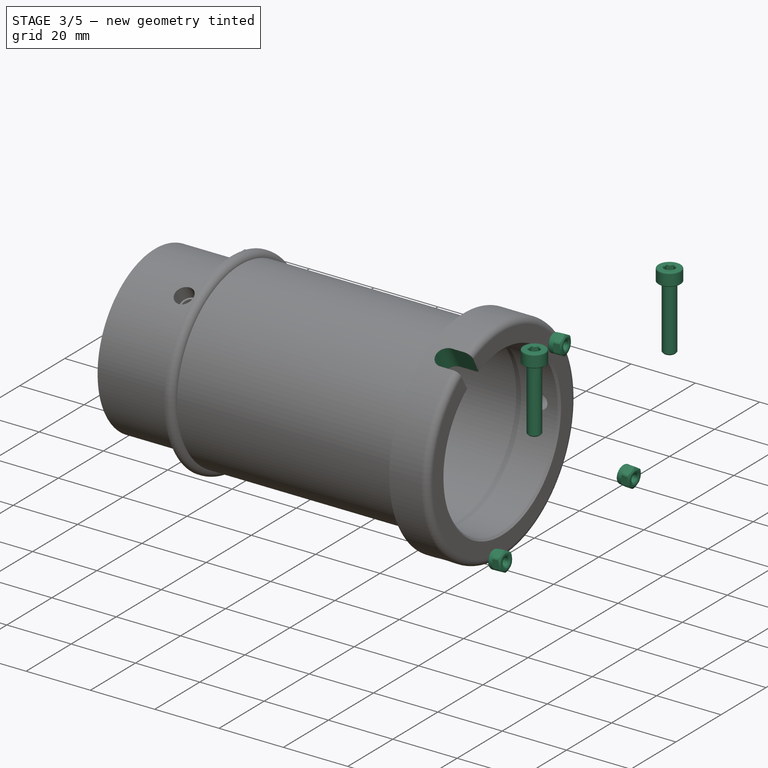
[diagram: stage 3 of 5 — iso view after this stage's code; geometry added in this stage tinted green]
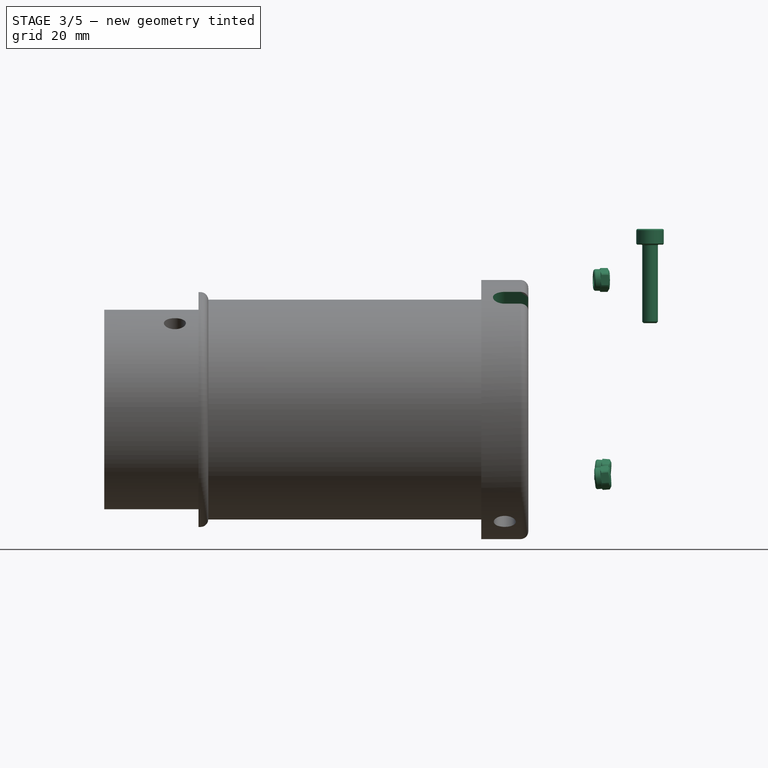
[diagram: stage 3 of 5 — front view after this stage's code; geometry added in this stage tinted green]
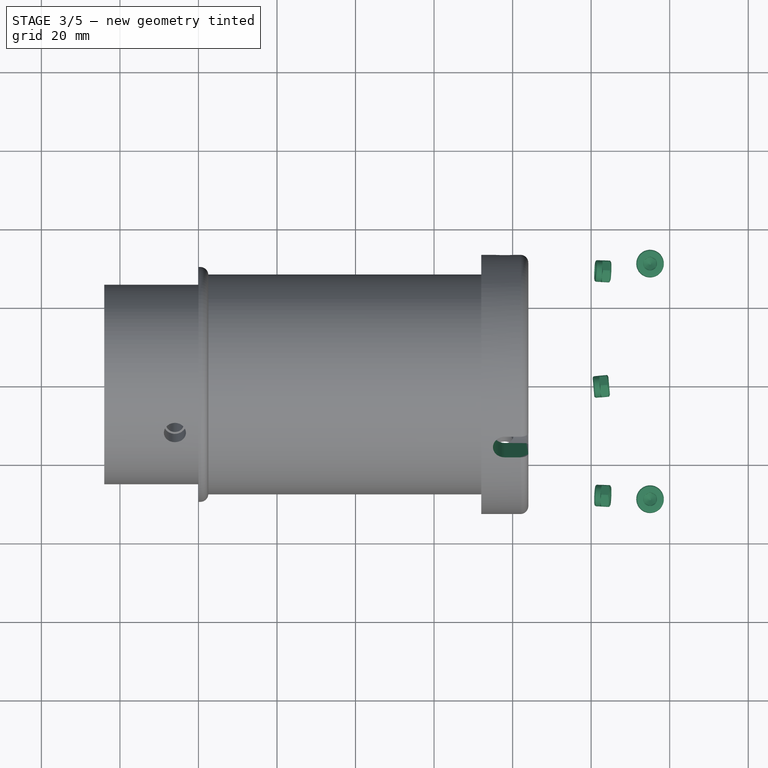
[diagram: stage 3 of 5 — top view after this stage's code; geometry added in this stage tinted green]
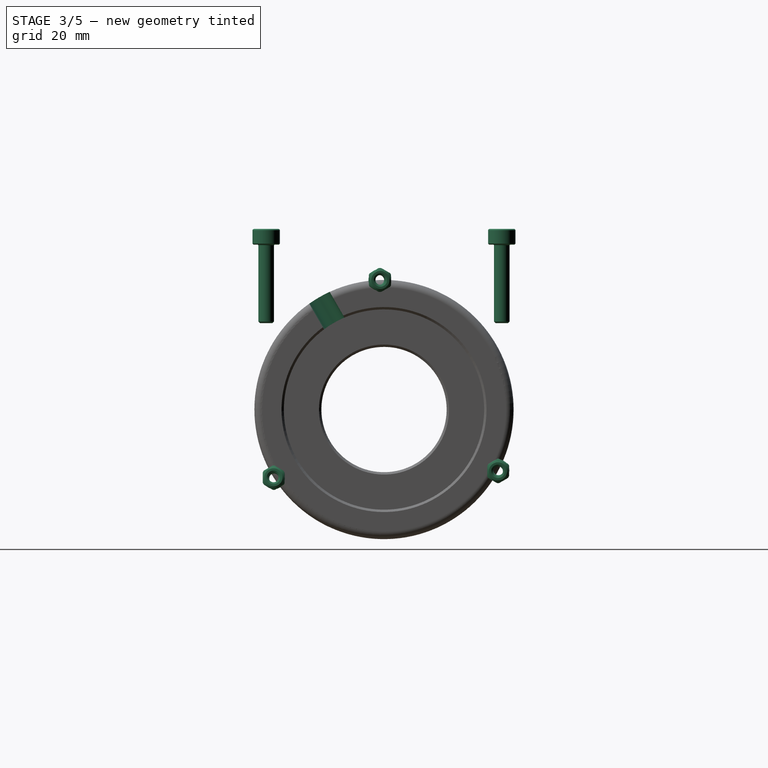
[diagram: stage 3 of 5 — right view after this stage's code; geometry added in this stage tinted green]
FEATURE [PartDesign::Plane] DatumPlane018  label="FocuserShaft_DatumPlane_Midpoint"
  AttachmentOffset = pos=(78,0,0) rot=(0,0,1;0rad)
  Length = 125.951
  MapMode = 5
  Placement = pos=(78,0,0) rot=(1,0,0;1.5708rad)
  ResizeMode = 0
  Support = -> [XZ_Plane007]
  Width = 82.8577
  expr: .AttachmentOffset.Base.x = <<Common>>#<<Parameters>>.foc_fheight / 2 + <<Common>>#<<Parameters>>.foc_shaft
FEATURE [Sketcher::SketchObject] Sketch031  label="FocuserShaft_Nut_Sketch"
  AttachmentOffset = pos=(0,0,33) rot=(0,0,1;0rad)
  FullyConstrained = true
  MapMode = 5
  Placement = pos=(78,33,7.3e-15) rot=(0,0.707107,0.707107;3.14159rad)
  Support = -> [DatumPlane018]
  expr: .AttachmentOffset.Base.z = <<Common>>#<<Parameters>>.foc_inner / 2 + <<Common>>#<<Parameters>>.foc_flange
  expr: Constraints[1] = <<Common>>#<<Parameters>>.acc_M4Bore
  sketch-geometry (1):
    g0: Circle CenterX=0 CenterY=0 CenterZ=0 NormalX=0 NormalY=0 NormalZ=1 AngleXU=0 Radius=2.8
  constraints (2):
    c: Coincident(g0,g-1)
    c: Diameter(g0) = 5.6
FEATURE [Sketcher::SketchObject] Sketch032  label="FocuserShaft_ScrewHole_Sketch"
  FullyConstrained = true
  MapMode = 5
  Placement = pos=(78,0,0) rot=(1,0,0;1.5708rad)
  Support = -> [DatumPlane018]
  sketch-geometry (1):
    g0: Circle CenterX=0 CenterY=0 CenterZ=0 NormalX=0 NormalY=0 NormalZ=1 AngleXU=0 Radius=2.2
  constraints (2):
    c: Coincident(g0,g-1)
    c: Diameter(g0) = 4.4
FEATURE [PartDesign::CoordinateSystem] Local_CS047  label="LCS_TubeBase"
  AttacherType = Attacher::AttachEngine3D
  MapMode = 11
  Placement = pos=(2,0,0) rot=(0.707107,0,0.707107;3.14159rad)
  Support = -> [Revolution001]
FEATURE [Sketcher::SketchObject] Sketch078  label="FocuserPlate_Sketch"
  FullyConstrained = true
  MapMode = 5
  Placement = pos=(0,0,0) rot=(0.57735,0.57735,0.57735;2.0944rad)
  Support = -> [YZ_Plane014]
  expr: Constraints[106] = <<Common>>#<<Parameters>>.sec_sidebolt_y
  expr: Constraints[107] = <<Common>>#<<Parameters>>.sec_sidebolt * 4
  expr: Constraints[111] = <<Common>>#<<Parameters>>.sec_sidebolt * 1.1
  expr: Constraints[11] = <<Common>>#<<Parameters>>.foc_inner / 2 + <<Common>>#<<Parameters>>.foc_wall + <<Common>>#<<Parameters>>.foc_spacing
  expr: Constraints[12] = -(<<Common>>#<<Parameters>>.sec_sidebolt_lower_z - <<Common>>#<<Parameters>>.mirror_distance) + <<Common>>#<<Parameters>>.sec_clampheight / 2
  expr: Constraints[151] = <<Common>>#<<Parameters>>.sec_sidebolt * 1.1
  expr: Constraints[153] = <<Common>>#<<Parameters>>.sec_mtvar
  expr: Constraints[18] = <<Common>>#<<Parameters>>.foc_inner / 2 + <<Common>>#<<Parameters>>.foc_wall + <<Common>>#<<Parameters>>.fbearing_outer / 2
  expr: Constraints[50] = <<Common>>#<<Parameters>>.fbearing_outer + <<Common>>#<<Parameters>>.sec_fthick * 2
  expr: Constraints[58] = <<Common>>#<<Parameters>>.fbearing_outer / 2 + <<Common>>#<<Parameters>>.sec_fthick
  expr: Constraints[78] = <<Common>>#<<Parameters>>.sec_sidebolt * 1.1
  expr: Constraints[89] = <<Common>>#<<Parameters>>.foc_mbrad
  expr: Constraints[8] = <<Common>>#<<Parameters>>.bolt_y - <<Common>>#<<Parameters>>.pri_poledia / 2 - <<Common>>#<<Parameters>>.sec_fthick
  expr: Constraints[90] = <<Common>>#<<Parameters>>.foc_mbrad
  expr: Constraints[91] = <<Common>>#<<Parameters>>.foc_mbrad - <<Common>>#<<Parameters>>.foc_baseflange / 2 - <<Common>>#<<Parameters>>.sec_fthick - <<Common>>#<<Parameters>>.sec_sidebolt * 3
  expr: Constraints[98] = <<Common>>#<<Parameters>>.sec_sidebolt_lower_z - <<Common>>#<<Parameters>>.mirror_distance
  expr: Constraints[99] = <<Common>>#<<Parameters>>.sec_sidebolt_upper_z - <<Common>>#<<Parameters>>.mirror_distance
  expr: Constraints[9] = <<Common>>#<<Parameters>>.datum_sec_upperhub + <<Common>>#<<Parameters>>.sec_stalkheight - <<Common>>#<<Parameters>>.mirror_distance
  sketch-geometry (64):
    g0: LineSegment StartX=-100 StartY=81 StartZ=0 EndX=100 EndY=81 EndZ=0
    g1: LineSegment StartX=100 StartY=81 StartZ=0 EndX=100 EndY=-54 EndZ=0
    g2: LineSegment StartX=100 StartY=-54 StartZ=0 EndX=-100 EndY=-54 EndZ=0
    g3: LineSegment StartX=-100 StartY=-54 StartZ=0 EndX=-100 EndY=81 EndZ=0
    g4: Circle CenterX=0 CenterY=0 CenterZ=0 NormalX=0 NormalY=0 NormalZ=1 AngleXU=0 Radius=30
    g5: LineSegment StartX=0 StartY=0 StartZ=0 EndX=28.5788 EndY=-16.5 EndZ=0
    g6: LineSegment StartX=0 StartY=0 StartZ=0 EndX=-28.5788 EndY=-16.5 EndZ=0
    g7: Circle CenterX=0 CenterY=0 CenterZ=0 NormalX=0 NormalY=0 NormalZ=1 AngleXU=0 Radius=33
    g8: ArcOfCircle CenterX=0 CenterY=0 CenterZ=0 NormalX=0 NormalY=0 NormalZ=1 AngleXU=0 Radius=30 StartAngle=1.84073 EndAngle=3.39526
    g9: ArcOfCircle CenterX=0 CenterY=0 CenterZ=0 NormalX=0 NormalY=0 NormalZ=1 AngleXU=0 Radius=30 StartAngle=3.93512 EndAngle=5.48965
    g10: ArcOfCircle CenterX=0 CenterY=0 CenterZ=0 NormalX=0 NormalY=0 NormalZ=1 AngleXU=0 Radius=30 StartAngle=6.02952 EndAngle=7.58405
    g11: LineSegment StartX=-8 StartY=28.9137 StartZ=0 EndX=-8 EndY=33 EndZ=0
    g12: LineSegment StartX=8 StartY=28.9137 StartZ=0 EndX=8 EndY=33 EndZ=0
    g13: LineSegment StartX=29.04 StartY=-7.52863 StartZ=0 EndX=32.5788 EndY=-9.57179 EndZ=0
    g14: LineSegment StartX=21.04 StartY=-21.385 StartZ=0 EndX=24.5788 EndY=-23.4282 EndZ=0
    g15: LineSegment StartX=-21.04 StartY=-21.385 StartZ=0 EndX=-24.5788 EndY=-23.4282 EndZ=0
    g16: LineSegment StartX=-29.04 StartY=-7.52863 StartZ=0 EndX=-32.5788 EndY=-9.57179 EndZ=0
    g17: ArcOfCircle CenterX=-28.5788 CenterY=-16.5 CenterZ=0 NormalX=0 NormalY=0 NormalZ=1 AngleXU=0 Radius=8 StartAngle=2.09439 EndAngle=5.23599
    g18: ArcOfCircle CenterX=28.5788 CenterY=-16.5 CenterZ=0 NormalX=0 NormalY=0 NormalZ=1 AngleXU=0 Radius=8 StartAngle=4.18879 EndAngle=7.33039
    g19: ArcOfCircle CenterX=0 CenterY=33 CenterZ=0 NormalX=0 NormalY=0 NormalZ=1 AngleXU=0 Radius=8 StartAngle=6.28318 EndAngle=9.42478
    g20: GeomPoint X=0 Y=41 Z=0
    g21: ArcOfCircle CenterX=-74 CenterY=73 CenterZ=0 NormalX=0 NormalY=0 NormalZ=1 AngleXU=0 Radius=2.2 StartAngle=-9e-16 EndAngle=3.14159
    g22: ArcOfCircle CenterX=-74 CenterY=69 CenterZ=0 NormalX=0 NormalY=0 NormalZ=1 AngleXU=0 Radius=2.2 StartAngle=3.14159 EndAngle=6.28319
    g23: LineSegment StartX=-76.2 StartY=73 StartZ=0 EndX=-76.2 EndY=69 EndZ=0
    g24: LineSegment StartX=-71.8 StartY=73 StartZ=0 EndX=-71.8 EndY=69 EndZ=0
    g25: ArcOfCircle CenterX=74 CenterY=73 CenterZ=0 NormalX=0 NormalY=0 NormalZ=1 AngleXU=0 Radius=2.2 StartAngle=2e-15 EndAngle=3.14159
    g26: ArcOfCircle CenterX=74 CenterY=69 CenterZ=0 NormalX=0 NormalY=0 NormalZ=1 AngleXU=0 Radius=2.2 StartAngle=3.14159 EndAngle=6.28319
    g27: LineSegment StartX=71.8 StartY=73 StartZ=0 EndX=71.8 EndY=69 EndZ=0
    g28: LineSegment StartX=76.2 StartY=73 StartZ=0 EndX=76.2 EndY=69 EndZ=0
    g29: LineSegment StartX=71.8 StartY=73 StartZ=0 EndX=76.2 EndY=69 EndZ=0
    g30: LineSegment StartX=76.2 StartY=73 StartZ=0 EndX=71.8 EndY=69 EndZ=0
    g31: GeomPoint X=74 Y=71 Z=0
    g32: Circle CenterX=0 CenterY=-36 CenterZ=0 NormalX=0 NormalY=0 NormalZ=1 AngleXU=0 Radius=2.2
    g33: Circle CenterX=36 CenterY=15 CenterZ=0 NormalX=0 NormalY=0 NormalZ=1 AngleXU=0 Radius=2.2
    g34: Circle CenterX=-36 CenterY=15 CenterZ=0 NormalX=0 NormalY=0 NormalZ=1 AngleXU=0 Radius=2.2
    g35: LineSegment StartX=-76.2 StartY=73 StartZ=0 EndX=-71.8 EndY=69 EndZ=0
    g36: LineSegment StartX=-71.8 StartY=73 StartZ=0 EndX=-76.2 EndY=69 EndZ=0
    g37: GeomPoint X=-74 Y=71 Z=0
    g38: LineSegment StartX=100 StartY=71 StartZ=0 EndX=-100 EndY=71 EndZ=0
    g39: LineSegment StartX=-100 StartY=-44 StartZ=0 EndX=100 EndY=-44 EndZ=0
    g40: LineSegment StartX=74 StartY=81 StartZ=0 EndX=74 EndY=-54 EndZ=0
    g41: LineSegment StartX=90 StartY=81 StartZ=0 EndX=90 EndY=-54 EndZ=0
    g42: Circle CenterX=90 CenterY=-44 CenterZ=0 NormalX=0 NormalY=0 NormalZ=1 AngleXU=0 Radius=2.2
    g43: Circle CenterX=-90 CenterY=-44 CenterZ=0 NormalX=0 NormalY=0 NormalZ=1 AngleXU=0 Radius=2.2
    g44: ArcOfCircle CenterX=-90 CenterY=73 CenterZ=0 NormalX=0 NormalY=0 NormalZ=1 AngleXU=0 Radius=2.2 StartAngle=2.2e-15 EndAngle=3.14159
    g45: ArcOfCircle CenterX=-90 CenterY=69 CenterZ=0 NormalX=0 NormalY=0 NormalZ=1 AngleXU=0 Radius=2.2 StartAngle=3.14159 EndAngle=6.28319
    g46: LineSegment StartX=-92.2 StartY=73 StartZ=0 EndX=-92.2 EndY=69 EndZ=0
    g47: LineSegment StartX=-87.8 StartY=73 StartZ=0 EndX=-87.8 EndY=69 EndZ=0
    g48: ArcOfCircle CenterX=90 CenterY=73 CenterZ=0 NormalX=0 NormalY=0 NormalZ=1 AngleXU=0 Radius=2.2 StartAngle=2.7e-15 EndAngle=3.14159
    g49: ArcOfCircle CenterX=90 CenterY=69 CenterZ=0 NormalX=0 NormalY=0 NormalZ=1 AngleXU=0 Radius=2.2 StartAngle=3.14159 EndAngle=6.28319
    g50: LineSegment StartX=87.8 StartY=73 StartZ=0 EndX=87.8 EndY=69 EndZ=0
    g51: LineSegment StartX=92.2 StartY=73 StartZ=0 EndX=92.2 EndY=69 EndZ=0
    g52: LineSegment StartX=87.8 StartY=73 StartZ=0 EndX=92.2 EndY=69 EndZ=0
    g53: LineSegment StartX=92.2 StartY=73 StartZ=0 EndX=87.8 EndY=69 EndZ=0
    g54: GeomPoint X=90 Y=71 Z=0
    g55: LineSegment StartX=-92.2 StartY=73 StartZ=0 EndX=-87.8 EndY=69 EndZ=0
    g56: LineSegment StartX=-87.8 StartY=73 StartZ=0 EndX=-92.2 EndY=69 EndZ=0
    g57: GeomPoint X=-90 Y=71 Z=0
    g58: Circle CenterX=74 CenterY=-44 CenterZ=0 NormalX=0 NormalY=0 NormalZ=1 AngleXU=0 Radius=2.2
    g59: Circle CenterX=-74 CenterY=-44 CenterZ=0 NormalX=0 NormalY=0 NormalZ=1 AngleXU=0 Radius=2.2
    g60: Circle CenterX=90 CenterY=71 CenterZ=0 NormalX=0 NormalY=0 NormalZ=1 AngleXU=0 Radius=2.2
    g61: Circle CenterX=74 CenterY=71 CenterZ=0 NormalX=0 NormalY=0 NormalZ=1 AngleXU=0 Radius=2.2
    g62: Circle CenterX=-90 CenterY=71 CenterZ=0 NormalX=0 NormalY=0 NormalZ=1 AngleXU=0 Radius=2.2
    g63: Circle CenterX=-74 CenterY=71 CenterZ=0 NormalX=0 NormalY=0 NormalZ=1 AngleXU=0 Radius=2.2
  constraints (165):
    c: Coincident(g0,g1)
    c: Coincident(g1,g2)
    c: Coincident(g2,g3)
    c: Coincident(g3,g0)
    c: Horizontal(g0)
    c: Vertical(g1)
    c: Vertical(g3)
    c: Symmetric(g1,g2,g-2)
    c: DistanceX(g1) = 100
    c: DistanceY(g0) = 81
    c: Coincident(g4,g-1)
    c: Radius(g4) = 30
    c: DistanceY(g1,g-1) = 54
    c: Coincident(g5,g-1)
    c: Coincident(g6,g5)
    c: Symmetric(g5,g6,g-2)
    c: Angle(g6,g5) = 2.0944
    c: Coincident(g7,g-1)
    c: Radius(g7) = 33
    c: PointOnObject(g5,g7)
    c: PointOnObject(g9,g4)
    c: PointOnObject(g10,g4)
    c: Coincident(g8,g-1)
    c: Coincident(g9,g8)
    c: Coincident(g10,g8)
    c: PointOnObject(g8,g4)
    c: Coincident(g11,g8)
    c: Coincident(g12,g10)
    c: Coincident(g13,g10)
    c: Coincident(g14,g9)
    c: Coincident(g15,g9)
    c: Coincident(g16,g8)
    c: Vertical(g11)
    c: Vertical(g12)
    c: Parallel(g15,g16)
    c: Parallel(g16,g6)
    c: Parallel(g14,g13)
    c: Parallel(g13,g5)
    c: Coincident(g17,g6)
    c: Coincident(g17,g15)
    c: Coincident(g17,g16)
    c: Coincident(g18,g5)
    c: Coincident(g18,g14)
    c: Coincident(g18,g13)
    c: PointOnObject(g19,g7)
    c: Coincident(g19,g11)
    c: Coincident(g19,g12)
    c: PointOnObject(g19,g-2)
    c: Equal(g19,g17)
    c: Equal(g17,g18)
    c: DistanceX(g11,g12) = 16
    c: Equal(g12,g11)
    c: Equal(g11,g16)
    c: Equal(g16,g15)
    c: Equal(g15,g14)
    c: Equal(g14,g13)
    c: PointOnObject(g20,g19)
    c: PointOnObject(g20,g-2)
    c: DistanceY(g19,g20) = 8
    c: Tangent(g21,g24) = 1.5708
    c: Tangent(g21,g23) = -1.5708
    c: Tangent(g23,g22) = -1.5708
    c: Tangent(g24,g22) = 1.5708
    c: Vertical(g23)
    c: Equal(g21,g22)
    c: Tangent(g25,g28) = 1.5708
    c: Tangent(g25,g27) = -1.5708
    c: Tangent(g27,g26) = -1.5708
    c: Tangent(g28,g26) = 1.5708
    c: Vertical(g27)
    c: Equal(g25,g26)
    c: Coincident(g29,g25)
    c: Coincident(g29,g26)
    c: Coincident(g30,g25)
    c: Coincident(g30,g26)
    c: PointOnObject(g31,g29)
    c: PointOnObject(g31,g30)
    c: PointOnObject(g32,g-2)
    c: Diameter(g34) = 4.4
    c: Equal(g34,g33)
    c: Equal(g34,g32)
    c: Symmetric(g33,g34,g-2)
    c: Coincident(g35,g21)
    c: Coincident(g35,g22)
    c: Coincident(g36,g21)
    c: Coincident(g36,g22)
    c: PointOnObject(g37,g35)
    c: PointOnObject(g37,g36)
    c: Symmetric(g37,g31,g-2)
    c: DistanceX(g33) = 36
    c: DistanceY(g32,g-1) = 36
    c: DistanceY(g33) = 15
    c: PointOnObject(g38,g1)
    c: PointOnObject(g38,g3)
    c: Horizontal(g38)
    c: PointOnObject(g39,g3)
    c: PointOnObject(g39,g1)
    c: Horizontal(g39)
    c: DistanceY(g39) = -44
    c: DistanceY(g38) = 71
    c: PointOnObject(g40,g0)
    c: PointOnObject(g40,g2)
    c: Vertical(g40)
    c: PointOnObject(g41,g0)
    c: PointOnObject(g41,g2)
    c: Vertical(g41)
    c: DistanceX(g41) = 90
    c: DistanceX(g40,g41) = 16
    c: PointOnObject(g42,g41)
    c: Symmetric(g43,g42,g-2)
    c: PointOnObject(g42,g39)
    c: Diameter(g42) = 4.4
    c: Equal(g42,g43)
    c: PointOnObject(g31,g38)
    c: PointOnObject(g31,g40)
    c: Tangent(g44,g47) = 1.5708
    c: Tangent(g44,g46) = -1.5708
    c: Tangent(g46,g45) = -1.5708
    c: Tangent(g47,g45) = 1.5708
    c: Vertical(g46)
    c: Equal(g44,g45)
    c: Tangent(g48,g51) = 1.5708
    c: Tangent(g48,g50) = -1.5708
    c: Tangent(g50,g49) = -1.5708
    c: Tangent(g51,g49) = 1.5708
    c: Vertical(g50)
    c: Equal(g48,g49)
    c: Coincident(g52,g48)
    c: Coincident(g52,g49)
    c: Coincident(g53,g48)
    c: Coincident(g53,g49)
    c: PointOnObject(g54,g52)
    c: PointOnObject(g54,g53)
    c: PointOnObject(g54,g41)
    c: PointOnObject(g54,g38)
    c: Equal(g50,g28)
    c: Equal(g25,g48)
    c: Coincident(g55,g44)
    c: Coincident(g55,g45)
    c: Coincident(g56,g44)
    c: Coincident(g56,g45)
    c: PointOnObject(g57,g55)
    c: PointOnObject(g57,g56)
    c: Equal(g47,g24)
    c: Equal(g44,g21)
    c: Symmetric(g57,g54,g-2)
    c: PointOnObject(g58,g40)
    c: PointOnObject(g58,g39)
    c: Symmetric(g59,g58,g-2)
    c: Equal(g58,g59)
    c: Equal(g59,g22)
    c: Diameter(g58) = 4.4
    c: Equal(g49,g22)
    c: DistanceY(g46,g46) = 4
    c: Equal(g27,g24)
    c: Coincident(g60,g54)
    c: Coincident(g61,g31)
    c: Coincident(g62,g57)
    c: Coincident(g63,g37)
    c: Equal(g62,g63)
    c: Equal(g63,g61)
    c: Equal(g61,g60)
    c: Equal(g60,g42)
    c: DistanceY(g3,g3) = 135
    c: DistanceY(g1,g42) = 10
FEATURE [PartDesign::Pad] Pad012  label="FocuserPlate_Pad"
  Direction = (1,-2e-16,3e-16)
  Length = 1
  Length2 = 100
  Placement = pos=(0,0,0) rot=(0.57735,0.57735,0.57735;2.0944rad)
  Profile = -> Sketch078
  Type = 0
  expr: Length = <<Common>>#<<Parameters>>.sec_spthick
FEATURE [PartDesign::CoordinateSystem] Local_CS048  label="LCS_TubeLock_Nut01"
  AttacherType = Attacher::AttachEngine3D
  AttachmentOffset = pos=(0,0,4) rot=(0,0,1;0rad)
  MapMode = 11
  Placement = pos=(78,32.5,6.8e-15) rot=(-0.57735,0.57735,0.57735;2.0944rad)
  Support = -> [PolarPattern008]
FEATURE [PartDesign::CoordinateSystem] Local_CS049  label="LCS_TubeLock_Nut02"
  AttacherType = Attacher::AttachEngine3D
  AttachmentOffset = pos=(0,0,4) rot=(0,0,1;0rad)
  MapMode = 11
  Placement = pos=(78,-16.25,-28.1458) rot=(0.694747,-0.694747,0.186157;2.77349rad)
  Support = -> [PolarPattern008]
FEATURE [PartDesign::CoordinateSystem] Local_CS050  label="LCS_TubeLock_Screw01"
  AttacherType = Attacher::AttachEngine3D
  AttachmentOffset = pos=(0,0,8) rot=(0,0,1;0rad)
  MapMode = 11
  Placement = pos=(78,36.5,7.2e-15) rot=(-0.57735,0.57735,0.57735;2.0944rad)
  Support = -> [PolarPattern008]
FEATURE [PartDesign::CoordinateSystem] Local_CS051  label="LCS_TubeLock_Screw02"
  AttacherType = Attacher::AttachEngine3D
  AttachmentOffset = pos=(0,0,8) rot=(0,0,1;0rad)
  MapMode = 11
  Placement = pos=(78,-18.25,-31.6099) rot=(0.694747,-0.694747,0.186157;2.77349rad)
  Support = -> [PolarPattern008]
FEATURE [PartDesign::Pocket] Pocket197  label="FocuserShaft_AdaptorCut"
  BaseFeature = -> PolarPattern008
  Direction = (0,-0.5,0.866025)
  Length = 5
  Length2 = 5
  Profile = -> Sketch146
  ReferenceAxis = -> Sketch146 [N_Axis]
  Type = 1
FEATURE [Part::FeaturePython] Nut  label="M3-Nut"  # Fasteners workbench fastener (typed FeaturePython)
  AttachedBy = Origin
  AttachedTo = FocuserSpring#Local_CS045
  AttachmentOffset = pos=(0,0,5) rot=(0,0,1;0rad)
  Placement = pos=(104.586,-0.911147,33) rot=(0.70677,0.030858,-0.70677;3.0799rad)
  SolverId = Asm4EE
  diameter = 1
  invert = false
  leftHanded = false
  matchOuter = false
  offset = 0
  thread = false
  type = 19
  expr: Placement = FocuserSpring.Placement * Local_CS045.Placement * AttachmentOffset
FEATURE [Part::FeaturePython] Nut001  label="M3-Nut107"  # Fasteners workbench fastener (typed FeaturePython)
  AttachedBy = Origin
  AttachedTo = FocuserBase#Local_CS033
  AttachmentOffset = pos=(0,0,5) rot=(0,0,1;0rad)
  Placement = pos=(104.964,-28.1398,-17.2604) rot=(0.663579,-0.401957,-0.630947;2.47638rad)
  SolverId = Asm4EE
  diameter = 1
  invert = false
  leftHanded = false
  matchOuter = false
  offset = 0
  thread = false
  type = 19
  expr: Placement = FocuserBase.Placement * Local_CS033.Placement * AttachmentOffset
FEATURE [Part::FeaturePython] Nut002  label="M3-Nut108"  # Fasteners workbench fastener (typed FeaturePython)
  AttachedBy = Origin
  AttachedTo = FocuserBase#Local_CS034
  AttachmentOffset = pos=(0,0,5) rot=(0,0,1;0rad)
  Placement = pos=(104.964,29.0179,-15.7396) rot=(-0.644711,-0.352973,0.678055;2.36216rad)
  SolverId = Asm4EE
  diameter = 1
  invert = false
  leftHanded = false
  matchOuter = false
  offset = 0
  thread = false
  type = 19
  expr: Placement = FocuserBase.Placement * Local_CS034.Placement * AttachmentOffset
FEATURE [App::Link] Insert_M4_Short
  AttachedBy = #Local_CS318
  AttachedTo = FocuserBase#Local_CS037
  AttachmentOffset = pos=(0,0,0) rot=(1,0,0;3.14159rad)
  LinkPlacement = pos=(115,-30,22.25) rot=(0,0,-1;1.5708rad)
  LinkedObject = -> <external Common.FCStd>#Body022061
  Placement = pos=(115,-30,22.25) rot=(0,0,-1;1.5708rad)
  SolverId = Asm4EE
  expr: Placement = FocuserBase.Placement * Local_CS037.Placement * AttachmentOffset * Common#Local_CS318.Placement ^ -1
FEATURE [App::Link] Insert_M4_Short_2
  AttachedBy = #Local_CS318
  AttachedTo = FocuserBase#Local_CS038
  AttachmentOffset = pos=(0,0,0) rot=(1,0,0;3.14159rad)
  LinkPlacement = pos=(115,30,22.25) rot=(0,0,-1;1.5708rad)
  LinkedObject = -> <external Common.FCStd>#Body022061
  Placement = pos=(115,30,22.25) rot=(0,0,-1;1.5708rad)
  SolverId = Asm4EE
  expr: Placement = FocuserBase.Placement * Local_CS038.Placement * AttachmentOffset * Common#Local_CS318.Placement ^ -1
FEATURE [App::Link] Insert_M4_Short_1
  AttachedBy = #Local_CS318
  AttachedTo = FocuserTube#Local_CS048
  AttachmentOffset = pos=(0,0,0) rot=(1,0,0;3.14159rad)
  LinkPlacement = pos=(173,-1.79e-14,-28.5) rot=(0,-1,0;3.14159rad)
  LinkedObject = -> <external Common.FCStd>#Body022061
  Placement = pos=(173,-1.79e-14,-28.5) rot=(0,-1,0;3.14159rad)
  SolverId = Asm4EE
  expr: Placement = FocuserTube.Placement * Local_CS048.Placement * AttachmentOffset * Common#Local_CS318.Placement ^ -1
FEATURE [App::Link] Insert_M4_Short_3
  AttachedBy = #Local_CS318
  AttachedTo = FocuserTube#Local_CS049
  AttachmentOffset = pos=(0,0,0) rot=(1,0,0;3.14159rad)
  LinkPlacement = pos=(173,-24.6817,14.25) rot=(0,0.5,-0.866025;3.14159rad)
  LinkedObject = -> <external Common.FCStd>#Body022061
  Placement = pos=(173,-24.6817,14.25) rot=(0,0.5,-0.866025;3.14159rad)
  SolverId = Asm4EE
  expr: Placement = FocuserTube.Placement * Local_CS049.Placement * AttachmentOffset * Common#Local_CS318.Placement ^ -1
FEATURE [App::Link] Insert_M4_Short_4
  AttachedBy = #Local_CS318
  AttachedTo = EyepieceAdaptor#Local_CS231
  AttachmentOffset = pos=(0,0,0) rot=(1,0,0;3.14159rad)
  LinkPlacement = pos=(173,18.0999,10.45) rot=(-1,0,0;1.0472rad)
  LinkedObject = -> <external Common.FCStd>#Body022061
  Placement = pos=(173,18.0999,10.45) rot=(-1,0,0;1.0472rad)
  SolverId = Asm4EE
  expr: Placement = EyepieceAdaptor.Placement * Local_CS231.Placement * AttachmentOffset * Common#Local_CS318.Placement ^ -1
FEATURE [App::Link] GBT834_M4x12
  AttachedBy = #Local_CS238
  AttachedTo = FocuserTube#Local_CS050
  LinkPlacement = pos=(173,-1.95e-14,-36.5) rot=(-1,0,0;3.14159rad)
  LinkedObject = -> <external Common.FCStd>#Body004
  Placement = pos=(173,-1.95e-14,-36.5) rot=(-1,0,0;3.14159rad)
  SolverId = Asm4EE
  expr: Placement = FocuserTube.Placement * Local_CS050.Placement * AttachmentOffset * Common#Local_CS238.Placement ^ -1
FEATURE [App::Link] GBT834_1
  AttachedBy = #Local_CS238
  AttachedTo = FocuserTube#Local_CS051
  LinkPlacement = pos=(173,-31.6099,18.25) rot=(1,0,0;1.0472rad)
  LinkedObject = -> <external Common.FCStd>#Body004
  Placement = pos=(173,-31.6099,18.25) rot=(1,0,0;1.0472rad)
  SolverId = Asm4EE
  expr: Placement = FocuserTube.Placement * Local_CS051.Placement * AttachmentOffset * Common#Local_CS238.Placement ^ -1
FEATURE [App::Link] GBT834_M4x25
  AttachedBy = #Local_CS237
  AttachedTo = EyepieceAdaptor#Local_CS232
  AttachmentOffset = pos=(0,0,8) rot=(0,0,1;0rad)
  LinkPlacement = pos=(173,35.4204,20.45) rot=(0,0.5,0.866025;3.14159rad)
  LinkedObject = -> <external Common.FCStd>#Body005
  Placement = pos=(173,35.4204,20.45) rot=(0,0.5,0.866025;3.14159rad)
  SolverId = Asm4EE
  expr: Placement = EyepieceAdaptor.Placement * Local_CS232.Placement * AttachmentOffset * Common#Local_CS237.Placement ^ -1
FEATURE [Part::FeaturePython] Screw006  label="M4x20-Screw"  # Fasteners workbench fastener (typed FeaturePython)
  AttachedBy = Origin
  AttachedTo = FocuserSpring#Local_CS135
  Placement = pos=(115,-30,42) rot=(0,0,1;1.5708rad)
  SolverId = Asm4EE
  diameter = 5
  invert = false
  leftHanded = false
  length = 6
  lengthCustom = 20
  matchOuter = false
  offset = 0
  thread = false
  type = 45
  expr: Placement = FocuserSpring.Placement * Local_CS135.Placement * AttachmentOffset
FEATURE [Part::FeaturePython] Screw007  label="M4x20-Screw001"  # Fasteners workbench fastener (typed FeaturePython)
  AttachedBy = Origin
  AttachedTo = FocuserSpring#Local_CS043
  Placement = pos=(115,30,42) rot=(0,0,1;1.5708rad)
  SolverId = Asm4EE
  diameter = 5
  invert = false
  leftHanded = false
  length = 6
  lengthCustom = 20
  matchOuter = false
  offset = 0
  thread = false
  type = 45
  expr: Placement = FocuserSpring.Placement * Local_CS043.Placement * AttachmentOffset
FEATURE [PartDesign::CoordinateSystem] LCS_FocuserPlate_ZF
  AttachedBy = Origin
  AttacherType = Attacher::AttachEngine3D
  Placement = pos=(121,-90,71) rot=(0.57735,-0.57735,0.57735;4.18879rad)
  SolverId = Asm4EE
  expr: Placement = FocuserPlate.Placement * Local_CS154.Placement
FEATURE [PartDesign::CoordinateSystem] LCS_FocuserPlate_ZA
  AttachedBy = Origin
  AttacherType = Attacher::AttachEngine3D
  Placement = pos=(121,90,71) rot=(0.57735,0.57735,0.57735;2.0944rad)
  SolverId = Asm4EE
  expr: Placement = FocuserPlate.Placement * Local_CS155.Placement
FEATURE [PartDesign::CoordinateSystem] LCS_FocuserPlate_NF
  AttachedBy = Origin
  AttacherType = Attacher::AttachEngine3D
  Placement = pos=(121,-90,-44) rot=(0.57735,-0.57735,0.57735;4.18879rad)
  SolverId = Asm4EE
  expr: Placement = FocuserPlate.Placement * Local_CS156.Placement
FEATURE [PartDesign::CoordinateSystem] LCS_FocuserPlate_NA
  AttachedBy = Origin
  AttacherType = Attacher::AttachEngine3D
  Placement = pos=(121,90,-44) rot=(0.57735,0.57735,0.57735;2.0944rad)
  SolverId = Asm4EE
  expr: Placement = FocuserPlate.Placement * Local_CS157.Placement
FEATURE [App::Part] Assembly
  AssemblyType = Part::Link
  DrawingName = Focuser.FCStd
  Group = -> [LCS_Origin,Constraints,Variables,Configurations,FocuserPlate,FocuserBase,FocuserSpring,FocuserTube,EyepieceAdaptor,Screw,Screw001,Screw002,Washer,Washer001,Washer002,Washer003,Washer004,Washer005,_23Bearing_ZI,_23Bearing_ZO,_23Bearing_NFI,_23Bearing_NFO,_23Bearing_NAI,_23Bearing_NAO,Screw003,Screw004,Screw005,Washer006,Washer007,Washer008,Nut,Nut001,Nut002,Insert_M4_Short,Insert_M4_Short_2,+12 more]
  Origin = -> Origin
  PartID = Focuser
  Type = Assembly
FEATURE [PartDesign::Chamfer] Chamfer001  label="FocuserShaft_RimChamfer"
  Angle = 45
  Base = -> Pocket197 [Edge14,Edge18]
  BaseFeature = -> Pocket197
  ChamferType = 0
  FlipDirection = false
  Size = 0.6
  Size2 = 1
  SupportTransform = false
  UseAllEdges = false
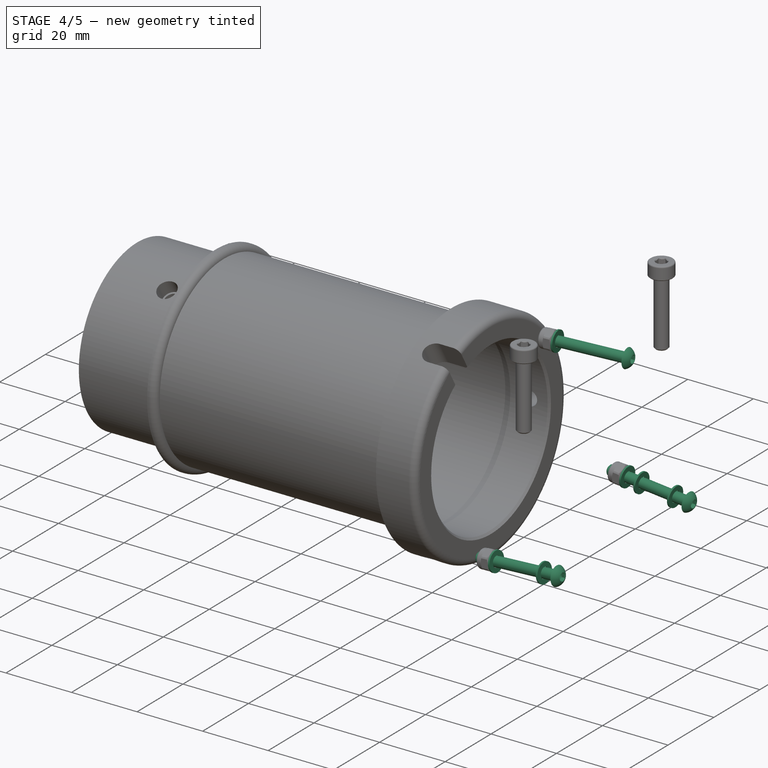
[diagram: stage 4 of 5 — iso view after this stage's code; geometry added in this stage tinted green]
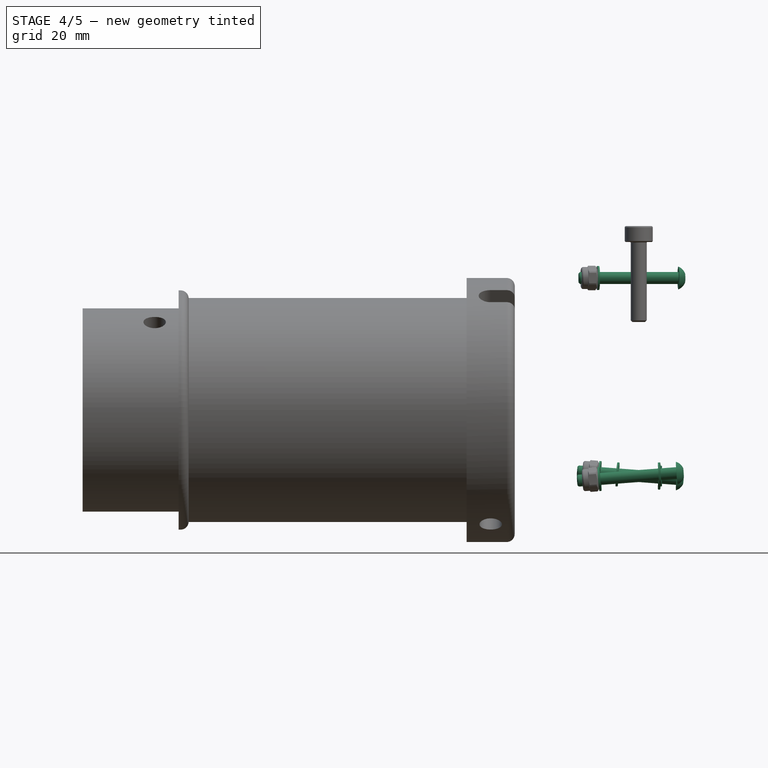
[diagram: stage 4 of 5 — front view after this stage's code; geometry added in this stage tinted green]
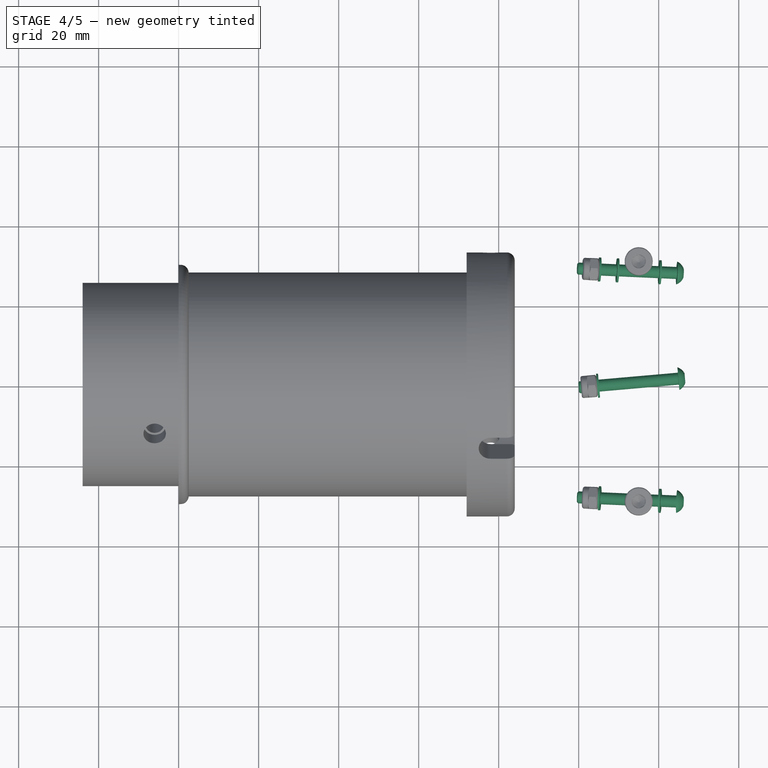
[diagram: stage 4 of 5 — top view after this stage's code; geometry added in this stage tinted green]
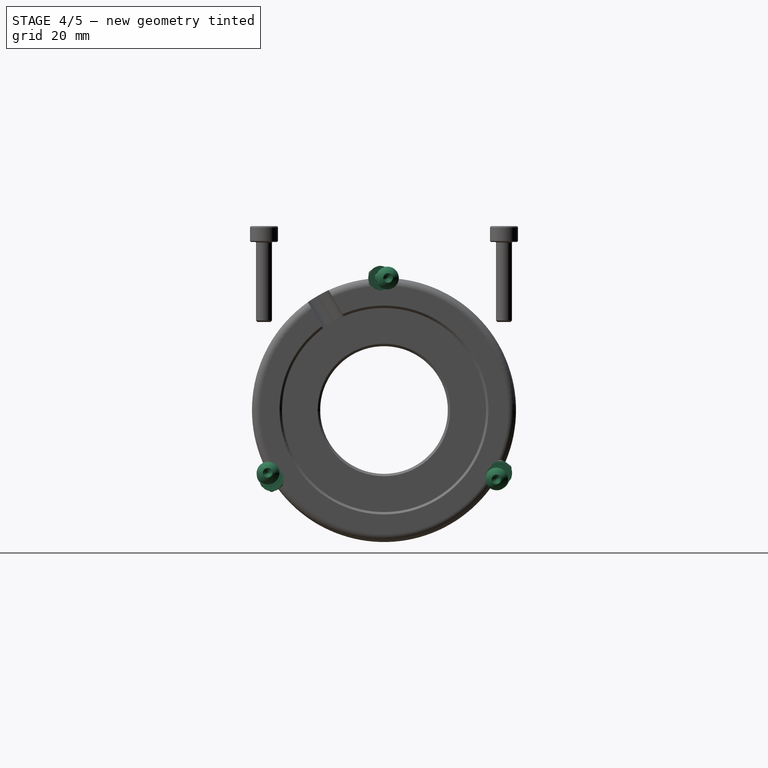
[diagram: stage 4 of 5 — right view after this stage's code; geometry added in this stage tinted green]
FEATURE [Part::FeaturePython] Washer003  label="M3-Washer437"  # Fasteners workbench fastener (typed FeaturePython)
  AttachedBy = Origin
  AttachedTo = FocuserBase#Local_CS035
  Placement = pos=(120.055,-28.8,-16.117) rot=(0.644711,0.352973,0.678055;2.36216rad)
  SolverId = Asm4EE
  diameter = 4
  invert = false
  matchOuter = false
  offset = 0
  type = 6
  expr: Placement = FocuserBase.Placement * Local_CS035.Placement * AttachmentOffset
FEATURE [Part::FeaturePython] Washer004  label="M3-Washer438"  # Fasteners workbench fastener (typed FeaturePython)
  AttachedBy = Origin
  AttachedTo = FocuserBase#Local_CS034
  Placement = pos=(109.945,28.8,-16.117) rot=(-0.644711,-0.352973,0.678055;2.36216rad)
  SolverId = Asm4EE
  diameter = 4
  invert = false
  matchOuter = false
  offset = 0
  type = 6
  expr: Placement = FocuserBase.Placement * Local_CS034.Placement * AttachmentOffset
FEATURE [Part::FeaturePython] Washer005  label="M3-Washer439"  # Fasteners workbench fastener (typed FeaturePython)
  AttachedBy = Origin
  AttachedTo = FocuserBase#Local_CS036
  Placement = pos=(120.055,28.3577,-16.883) rot=(0.663579,-0.401957,0.630947;3.8068rad)
  SolverId = Asm4EE
  diameter = 4
  invert = false
  matchOuter = false
  offset = 0
  type = 6
  expr: Placement = FocuserBase.Placement * Local_CS036.Placement * AttachmentOffset
FEATURE [App::Link] _23Bearing_ZI  label="623Bearing_ZI"
  AttachedBy = #Local_CS193
  AttachedTo = FocuserSpring#Local_CS045
  AttachmentOffset = pos=(0,0,0.5) rot=(1,0,0;3.14159rad)
  LinkPlacement = pos=(107.076,-0.693258,33) rot=(-0.610924,0.559809,-0.559809;2.04477rad)
  LinkedObject = -> <external Common.FCStd>#Body022012
  Placement = pos=(107.076,-0.693258,33) rot=(-0.610924,0.559809,-0.559809;2.04477rad)
  SolverId = Asm4EE
  expr: Placement = FocuserSpring.Placement * Local_CS045.Placement * AttachmentOffset * Common#Local_CS193.Placement ^ -1
FEATURE [App::Link] _23Bearing_ZO  label="623Bearing_ZO"
  AttachedBy = #Local_CS194
  AttachedTo = FocuserSpring#Local_CS046
  AttachmentOffset = pos=(0,0,0.5) rot=(1,0,0;3.14159rad)
  LinkPlacement = pos=(122.924,0.693258,33) rot=(-0.610924,0.559809,-0.559809;2.04477rad)
  LinkedObject = -> <external Common.FCStd>#Body022012
  Placement = pos=(122.924,0.693258,33) rot=(-0.610924,0.559809,-0.559809;2.04477rad)
  SolverId = Asm4EE
  expr: Placement = FocuserSpring.Placement * Local_CS046.Placement * AttachmentOffset * Common#Local_CS194.Placement ^ -1
FEATURE [App::Link] _23Bearing_NFI  label="623Bearing_NFI"
  AttachedBy = #Local_CS193
  AttachedTo = FocuserBase#Local_CS033
  AttachmentOffset = pos=(0,0,0.5) rot=(1,0,0;3.14159rad)
  LinkPlacement = pos=(107.454,-28.2488,-17.0717) rot=(0.662781,-0.193807,0.723298;3.49311rad)
  LinkedObject = -> <external Common.FCStd>#Body022012
  Placement = pos=(107.454,-28.2488,-17.0717) rot=(0.662781,-0.193807,0.723298;3.49311rad)
  SolverId = Asm4EE
  expr: Placement = FocuserBase.Placement * Local_CS033.Placement * AttachmentOffset * Common#Local_CS193.Placement ^ -1
FEATURE [App::Link] _23Bearing_NFO  label="623Bearing_NFO"
  AttachedBy = #Local_CS194
  AttachedTo = FocuserBase#Local_CS035
  AttachmentOffset = pos=(0,0,0.5) rot=(1,0,0;3.14159rad)
  LinkPlacement = pos=(122.546,-28.9089,-15.9283) rot=(0.662781,-0.193807,0.723298;3.49311rad)
  LinkedObject = -> <external Common.FCStd>#Body022012
  Placement = pos=(122.546,-28.9089,-15.9283) rot=(0.662781,-0.193807,0.723298;3.49311rad)
  SolverId = Asm4EE
  expr: Placement = FocuserBase.Placement * Local_CS035.Placement * AttachmentOffset * Common#Local_CS194.Placement ^ -1
FEATURE [App::Link] _23Bearing_NAI  label="623Bearing_NAI"
  AttachedBy = #Local_CS193
  AttachedTo = FocuserBase#Local_CS034
  AttachmentOffset = pos=(0,0,0.5) rot=(1,0,0;3.14159rad)
  LinkPlacement = pos=(107.454,28.9089,-15.9283) rot=(-0.230763,0.939855,-0.251834;1.71965rad)
  LinkedObject = -> <external Common.FCStd>#Body022012
  Placement = pos=(107.454,28.9089,-15.9283) rot=(-0.230763,0.939855,-0.251834;1.71965rad)
  SolverId = Asm4EE
  expr: Placement = FocuserBase.Placement * Local_CS034.Placement * AttachmentOffset * Common#Local_CS193.Placement ^ -1
FEATURE [App::Link] _23Bearing_NAO  label="623Bearing_NAO"
  AttachedBy = #Local_CS194
  AttachedTo = FocuserBase#Local_CS036
  AttachmentOffset = pos=(0,0,0.5) rot=(1,0,0;3.14159rad)
  LinkPlacement = pos=(122.546,28.2488,-17.0717) rot=(0.230763,-0.939855,0.251834;4.56353rad)
  LinkedObject = -> <external Common.FCStd>#Body022012
  Placement = pos=(122.546,28.2488,-17.0717) rot=(0.230763,-0.939855,0.251834;4.56353rad)
  SolverId = Asm4EE
  expr: Placement = FocuserBase.Placement * Local_CS036.Placement * AttachmentOffset * Common#Local_CS194.Placement ^ -1
FEATURE [Part::FeaturePython] Screw003  label="M3x25-Screw"  # Fasteners workbench fastener (typed FeaturePython)
  AttachedBy = Origin
  AttachedTo = FocuserSpring#Local_CS046
  AttachmentOffset = pos=(0,0,4.5) rot=(0,0,1;0rad)
  Placement = pos=(124.916,0.867569,33) rot=(0.70677,0.030858,0.70677;3.20329rad)
  SolverId = Asm4EE
  diameter = 1
  invert = false
  leftHanded = false
  length = 7
  lengthCustom = 25
  matchOuter = false
  offset = 0
  thread = false
  type = 51
  expr: Placement = FocuserSpring.Placement * Local_CS046.Placement * AttachmentOffset
FEATURE [Part::FeaturePython] Screw004  label="M3x25-Screw107"  # Fasteners workbench fastener (typed FeaturePython)
  AttachedBy = Origin
  AttachedTo = FocuserBase#Local_CS035
  AttachmentOffset = pos=(0,0,4.5) rot=(0,0,1;0rad)
  Placement = pos=(124.538,-28.9961,-15.7773) rot=(0.644711,0.352973,0.678055;2.36216rad)
  SolverId = Asm4EE
  diameter = 1
  invert = false
  leftHanded = false
  length = 7
  lengthCustom = 25
  matchOuter = false
  offset = 0
  thread = false
  type = 51
  expr: Placement = FocuserBase.Placement * Local_CS035.Placement * AttachmentOffset
FEATURE [Part::FeaturePython] Screw005  label="M3x25-Screw108"  # Fasteners workbench fastener (typed FeaturePython)
  AttachedBy = Origin
  AttachedTo = FocuserBase#Local_CS036
  AttachmentOffset = pos=(0,0,4.5) rot=(0,0,1;0rad)
  Placement = pos=(124.538,28.1616,-17.2227) rot=(0.663579,-0.401957,0.630947;3.8068rad)
  SolverId = Asm4EE
  diameter = 1
  invert = false
  leftHanded = false
  length = 7
  lengthCustom = 25
  matchOuter = false
  offset = 0
  thread = false
  type = 51
  expr: Placement = FocuserBase.Placement * Local_CS036.Placement * AttachmentOffset
FEATURE [Part::FeaturePython] Washer006  label="M3-Washer440"  # Fasteners workbench fastener (typed FeaturePython)
  AttachedBy = Origin
  AttachedTo = FocuserSpring#Local_CS045
  AttachmentOffset = pos=(0,0,4.5) rot=(0,0,1;0rad)
  Placement = pos=(105.084,-0.867569,33) rot=(0.70677,0.030858,-0.70677;3.0799rad)
  SolverId = Asm4EE
  diameter = 4
  invert = false
  matchOuter = false
  offset = 0
  type = 6
  expr: Placement = FocuserSpring.Placement * Local_CS045.Placement * AttachmentOffset
FEATURE [Part::FeaturePython] Washer007  label="M3-Washer441"  # Fasteners workbench fastener (typed FeaturePython)
  AttachedBy = Origin
  AttachedTo = FocuserBase#Local_CS033
  AttachmentOffset = pos=(0,0,4.5) rot=(0,0,1;0rad)
  Placement = pos=(105.462,-28.1616,-17.2227) rot=(0.663579,-0.401957,-0.630947;2.47638rad)
  SolverId = Asm4EE
  diameter = 4
  invert = false
  matchOuter = false
  offset = 0
  type = 6
  expr: Placement = FocuserBase.Placement * Local_CS033.Placement * AttachmentOffset
FEATURE [Part::FeaturePython] Washer008  label="M3-Washer442"  # Fasteners workbench fastener (typed FeaturePython)
  AttachedBy = Origin
  AttachedTo = FocuserBase#Local_CS034
  AttachmentOffset = pos=(0,0,4.5) rot=(0,0,1;0rad)
  Placement = pos=(105.462,28.9961,-15.7773) rot=(-0.644711,-0.352973,0.678055;2.36216rad)
  SolverId = Asm4EE
  diameter = 4
  invert = false
  matchOuter = false
  offset = 0
  type = 6
  expr: Placement = FocuserBase.Placement * Local_CS034.Placement * AttachmentOffset
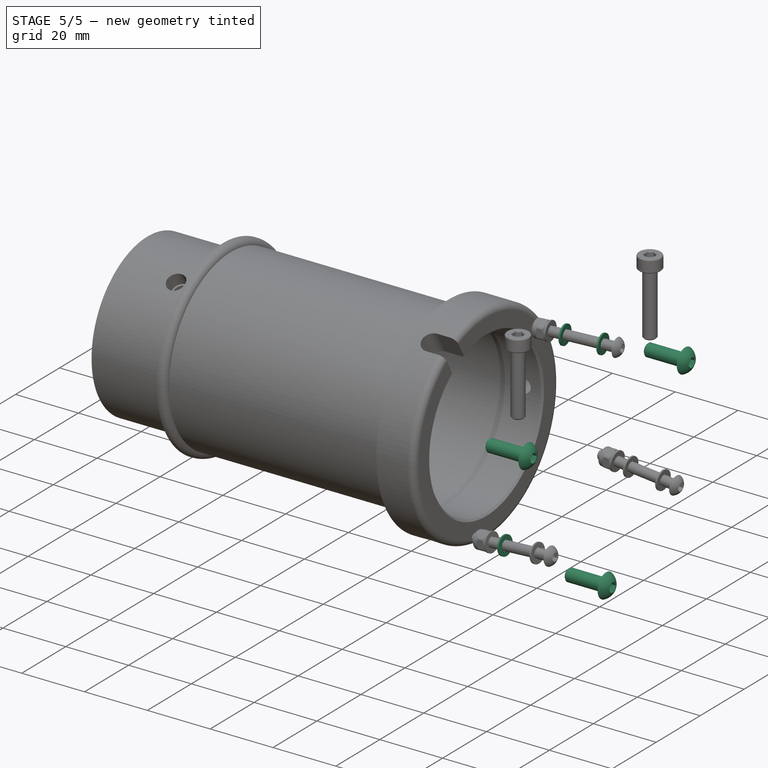
[diagram: stage 5 of 5 — iso view after this stage's code; geometry added in this stage tinted green]
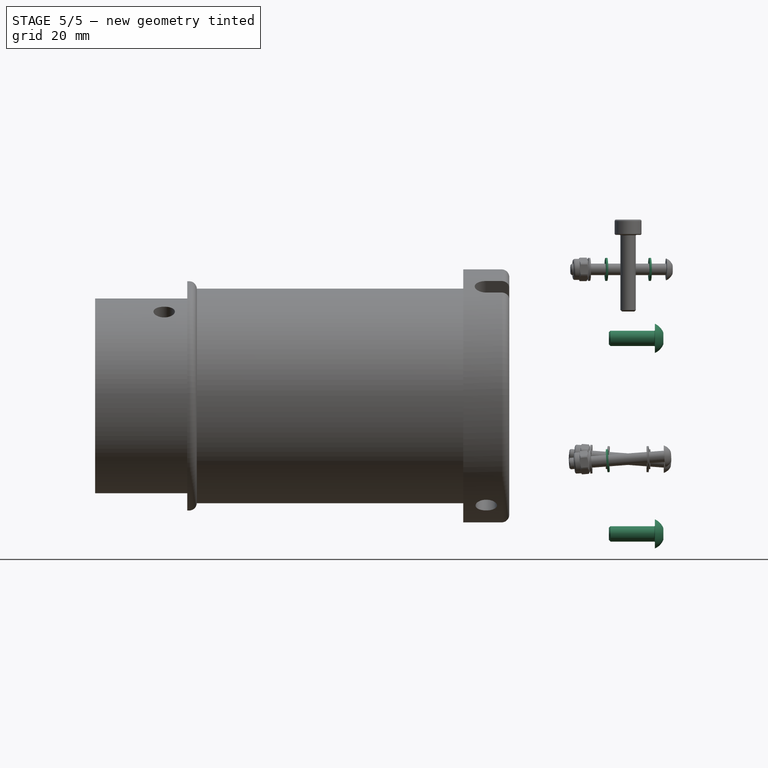
[diagram: stage 5 of 5 — front view after this stage's code; geometry added in this stage tinted green]
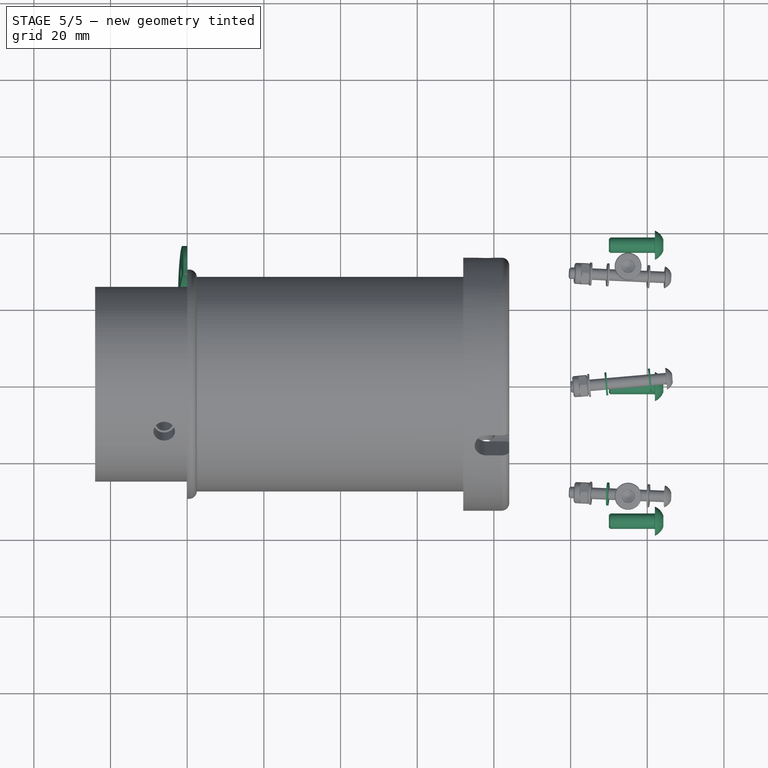
[diagram: stage 5 of 5 — top view after this stage's code; geometry added in this stage tinted green]
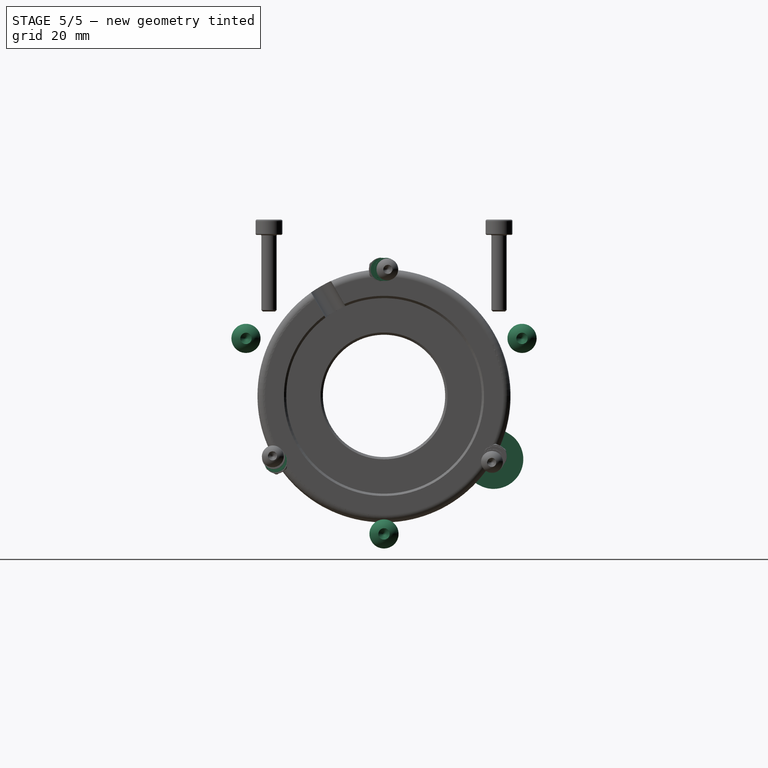
[diagram: stage 5 of 5 — right view after this stage's code; geometry added in this stage tinted green]
FEATURE [PartDesign::CoordinateSystem] Local_CS041  label="LCS_SpringBase_A"
  AttacherType = Attacher::AttachEngine3D
  MapMode = 11
  Placement = pos=(6,30,30) rot=(0,0,1;1.5708rad)
  Support = -> [Pocket022]
FEATURE [PartDesign::CoordinateSystem] Local_CS134  label="LCS_SpringBase_F"
  AttacherType = Attacher::AttachEngine3D
  MapMode = 11
  Placement = pos=(6,-30,30) rot=(0,0,1;1.5708rad)
  Support = -> [Pocket022]
FEATURE [PartDesign::CoordinateSystem] Local_CS043  label="LCS_SpringBolt_A"
  AttacherType = Attacher::AttachEngine3D
  MapMode = 11
  Placement = pos=(6,30,42) rot=(0,0,1;1.5708rad)
  Support = -> [Pocket022]
FEATURE [PartDesign::CoordinateSystem] Local_CS135  label="LCS_SpringBolt_F"
  AttacherType = Attacher::AttachEngine3D
  MapMode = 11
  Placement = pos=(6,-30,42) rot=(0,0,1;1.5708rad)
  Support = -> [Pocket022]
FEATURE [PartDesign::CoordinateSystem] Local_CS045  label="LCS_Bearing_Inner_Z"
  AttacherType = Attacher::AttachEngine3D
  MapMode = 11
  Placement = pos=(0.566512,-0.475369,33) rot=(0.70677,0.030858,-0.70677;3.0799rad)
  Support = -> [Pocket022]
FEATURE [PartDesign::CoordinateSystem] Local_CS046  label="LCS_Bearing_Outer_Z"
  AttacherType = Attacher::AttachEngine3D
  MapMode = 11
  Placement = pos=(11.4335,0.475369,33) rot=(0.70677,0.030858,0.70677;3.20329rad)
  Support = -> [Pocket022]
FEATURE [PartDesign::CoordinateSystem] Local_CS205  label="LCS_PlateBaseMount_ZF"
  AttacherType = Attacher::AttachEngine3D
  AttachmentOffset = pos=(-36,15,0) rot=(0,0,1;0rad)
  MapMode = 5
  Placement = pos=(-1.13e-14,-36,15) rot=(0.57735,0.57735,0.57735;2.0944rad)
  Support = -> [YZ_Plane014]
  expr: .AttachmentOffset.Base.x = -<<Common>>#<<Parameters>>.foc_mbrad
  expr: .AttachmentOffset.Base.y = <<Common>>#<<Parameters>>.foc_mbrad - <<Common>>#<<Parameters>>.foc_baseflange / 2 - <<Common>>#<<Parameters>>.sec_fthick - <<Common>>#<<Parameters>>.sec_sidebolt * 3
FEATURE [PartDesign::CoordinateSystem] Local_CS206  label="LCS_PlateBaseMount_ZA"
  AttacherType = Attacher::AttachEngine3D
  AttachmentOffset = pos=(36,15,0) rot=(0,0,1;0rad)
  MapMode = 5
  Placement = pos=(4.7e-15,36,15) rot=(0.57735,0.57735,0.57735;2.0944rad)
  Support = -> [YZ_Plane014]
  expr: .AttachmentOffset.Base.x = <<Common>>#<<Parameters>>.foc_mbrad
  expr: .AttachmentOffset.Base.y = <<Common>>#<<Parameters>>.foc_mbrad - <<Common>>#<<Parameters>>.foc_baseflange / 2 - <<Common>>#<<Parameters>>.sec_fthick - <<Common>>#<<Parameters>>.sec_sidebolt * 3
FEATURE [Sketcher::SketchObject] Sketch114  label="FocuserPlate_MasterSketch"
  FullyConstrained = true
  MapMode = 5
  Placement = pos=(0,0,0) rot=(0.57735,0.57735,0.57735;2.0944rad)
  Support = -> [YZ_Plane014]
  expr: .Constraints.ShaftDia = <<Common>>#<<Parameters>>.foc_inner / 2 + <<Common>>#<<Parameters>>.foc_wall + <<Common>>#<<Parameters>>.foc_spacing
  expr: Constraints[15] = <<Common>>#<<Parameters>>.fbearing_outer
  expr: Constraints[39] = <<Common>>#<<Parameters>>.datum_sec_upperhub + <<Common>>#<<Parameters>>.sec_stalkheight - <<Common>>#<<Parameters>>.mirror_distance
  expr: Constraints[3] = .Constraints.ShaftDia + (<<Common>>#<<Parameters>>.fbearing_outer / 2 - <<Common>>#<<Parameters>>.foc_spacing) * 1 mm
  expr: Constraints[48] = <<Common>>#<<Parameters>>.sec_sidebolt_upper_z - <<Common>>#<<Parameters>>.mirror_distance
  expr: Constraints[49] = <<Common>>#<<Parameters>>.bolt_y - <<Common>>#<<Parameters>>.pri_poledia / 2 - <<Common>>#<<Parameters>>.sec_fthick
  expr: Constraints[50] = <<Common>>#<<Parameters>>.sec_sidebolt_y
  expr: Constraints[59] = <<Common>>#<<Parameters>>.sec_sidebolt_lower_z - <<Common>>#<<Parameters>>.mirror_distance - <<Common>>#<<Parameters>>.sec_clampheight / 2
  expr: Constraints[63] = <<Common>>#<<Parameters>>.sec_sidebolt_lower_z - <<Common>>#<<Parameters>>.mirror_distance
  sketch-geometry (25):
    g0: Circle CenterX=0 CenterY=0 CenterZ=0 NormalX=0 NormalY=0 NormalZ=1 AngleXU=0 Radius=30
    g1: Circle CenterX=0 CenterY=0 CenterZ=0 NormalX=0 NormalY=0 NormalZ=1 AngleXU=0 Radius=33
    g2: LineSegment StartX=0 StartY=33 StartZ=0 EndX=-28.5788 EndY=-16.5 EndZ=0
    g3: LineSegment StartX=-28.5788 StartY=-16.5 StartZ=0 EndX=28.5788 EndY=-16.5 EndZ=0
    g4: LineSegment StartX=28.5788 StartY=-16.5 StartZ=0 EndX=0 EndY=33 EndZ=0
    g5: Circle CenterX=0 CenterY=33 CenterZ=0 NormalX=0 NormalY=0 NormalZ=1 AngleXU=0 Radius=5
    g6: Circle CenterX=28.5788 CenterY=-16.5 CenterZ=0 NormalX=0 NormalY=0 NormalZ=1 AngleXU=0 Radius=5
    g7: Circle CenterX=-28.5788 CenterY=-16.5 CenterZ=0 NormalX=0 NormalY=0 NormalZ=1 AngleXU=0 Radius=5
    g8: LineSegment StartX=-57.1577 StartY=33 StartZ=0 EndX=57.1577 EndY=33 EndZ=0
    g9: LineSegment StartX=0 StartY=-66 StartZ=0 EndX=57.1577 EndY=33 EndZ=0
    g10: LineSegment StartX=0 StartY=-66 StartZ=0 EndX=-57.1577 EndY=33 EndZ=0
    g11: LineSegment StartX=-57.1577 StartY=33 StartZ=0 EndX=0 EndY=0 EndZ=0
    g12: LineSegment StartX=57.1577 StartY=33 StartZ=0 EndX=0 EndY=0 EndZ=0
    g13: LineSegment StartX=-100 StartY=81 StartZ=0 EndX=100 EndY=81 EndZ=0
    g14: LineSegment StartX=100 StartY=81 StartZ=0 EndX=100 EndY=-54 EndZ=0
    g15: LineSegment StartX=100 StartY=-54 StartZ=0 EndX=-100 EndY=-54 EndZ=0
    g16: LineSegment StartX=-100 StartY=-54 StartZ=0 EndX=-100 EndY=81 EndZ=0
    g17: LineSegment StartX=-100 StartY=71 StartZ=0 EndX=100 EndY=71 EndZ=0
    g18: LineSegment StartX=90 StartY=81 StartZ=0 EndX=90 EndY=-54 EndZ=0
    g19: LineSegment StartX=-90 StartY=81 StartZ=0 EndX=-90 EndY=-54 EndZ=0
    g20: Circle CenterX=-90 CenterY=71 CenterZ=0 NormalX=0 NormalY=0 NormalZ=1 AngleXU=0 Radius=2
    g21: Circle CenterX=90 CenterY=71 CenterZ=0 NormalX=0 NormalY=0 NormalZ=1 AngleXU=0 Radius=2
    g22: LineSegment StartX=100 StartY=-44 StartZ=0 EndX=-100 EndY=-44 EndZ=0
    g23: Circle CenterX=90 CenterY=-44 CenterZ=0 NormalX=0 NormalY=0 NormalZ=1 AngleXU=0 Radius=2
    g24: Circle CenterX=-90 CenterY=-44 CenterZ=0 NormalX=0 NormalY=0 NormalZ=1 AngleXU=0 Radius=2
  constraints (70):
    c: Coincident(g0,g-1)
    c: Radius(g0) = 30  'ShaftDia'
    c: Coincident(g1,g-1)
    c: Radius(g1) = 33
    c: PointOnObject(g2,g1)
    c: PointOnObject(g2,g1)
    c: Coincident(g3,g2)
    c: PointOnObject(g3,g1)
    c: Horizontal(g3)
    c: Coincident(g4,g3)
    c: Coincident(g4,g2)
    c: PointOnObject(g2,g-2)
    c: Angle(g2,g4) = 1.0472
    c: Coincident(g5,g2)
    c: Coincident(g7,g2)
    c: Diameter(g7) = 10
    c: Equal(g7,g6)
    c: Equal(g7,g5)
    c: Coincident(g6,g3)
    c: Horizontal(g8)
    c: PointOnObject(g10,g-2)
    c: PointOnObject(g2,g8)
    c: PointOnObject(g2,g10)
    c: PointOnObject(g3,g9)
    c: Coincident(g9,g10)
    c: Coincident(g9,g8)
    c: Coincident(g10,g8)
    c: Parallel(g9,g2)
    c: Coincident(g11,g8)
    c: Coincident(g11,g-1)
    c: Coincident(g12,g8)
    c: Coincident(g12,g-1)
    c: Coincident(g13,g14)
    c: Coincident(g14,g15)
    c: Coincident(g15,g16)
    c: Coincident(g16,g13)
    c: Horizontal(g15)
    c: Vertical(g14)
    c: Vertical(g16)
    c: DistanceY(g13) = 81
    c: PointOnObject(g17,g16)
    c: PointOnObject(g17,g14)
    c: Horizontal(g17)
    c: PointOnObject(g18,g13)
    c: PointOnObject(g18,g15)
    c: Vertical(g18)
    c: PointOnObject(g19,g15)
    c: Vertical(g19)
    c: DistanceY(g17) = 71
    c: DistanceX(g13) = 100
    c: DistanceX(g18) = 90
    c: Symmetric(g13,g13,g-2)
    c: Symmetric(g19,g18,g-2)
    c: PointOnObject(g20,g17)
    c: PointOnObject(g21,g17)
    c: PointOnObject(g21,g18)
    c: PointOnObject(g20,g19)
    c: Diameter(g20) = 4
    c: Equal(g20,g21)
    c: DistanceY(g14) = -54
    c: PointOnObject(g22,g14)
    c: PointOnObject(g22,g16)
    c: Horizontal(g22)
    c: DistanceY(g22) = -44
    c: PointOnObject(g23,g22)
    c: PointOnObject(g24,g22)
    c: PointOnObject(g24,g19)
    c: PointOnObject(g23,g18)
    c: Equal(g23,g24)
    c: Equal(g24,g21)
FEATURE [PartDesign::Plane] DatumPlane034  label="DatumPlane_FBearngPad_Axis"
  AttachmentOffset = pos=(6,0,0) rot=(1,0,0;1.0472rad)
  Length = 61.6877
  MapMode = 2
  Placement = pos=(6,0,0) rot=(1,0,0;1.0472rad)
  ResizeMode = 0
  Support = -> [XY_Plane076]
  Width = 79.989
  expr: .AttachmentOffset.Base.x = <<Common>>#<<Parameters>>.foc_fheight / 2
FEATURE [Sketcher::SketchObject] Sketch120  label="FBearingPad_Profile_Sketch"
  FullyConstrained = true
  MapMode = 5
  Placement = pos=(6,0,0) rot=(1,0,0;1.0472rad)
  Support = -> [DatumPlane034]
  expr: Constraints[0] = <<Common>>#<<Parameters>>.fbearing_outer + <<Common>>#<<Parameters>>.sec_fthick * 2 - 0.5
  expr: Constraints[10] = <<Common>>#<<Parameters>>.fbearing_tilt
  expr: Constraints[7] = <<Common>>#<<Parameters>>.sec_spthick
  expr: Constraints[9] = -<<Common>>#<<Parameters>>.foc_fheight / 2
  sketch-geometry (4):
    g0: LineSegment StartX=-6 StartY=7.75 StartZ=0 EndX=-6 EndY=-7.75 EndZ=0
    g1: LineSegment StartX=-6 StartY=7.75 StartZ=0 EndX=-7 EndY=7.75 EndZ=0
    g2: LineSegment StartX=-7 StartY=7.75 StartZ=0 EndX=-8.35607 EndY=-7.75 EndZ=0
    g3: LineSegment StartX=-8.35607 StartY=-7.75 StartZ=0 EndX=-6 EndY=-7.75 EndZ=0
  constraints (11):
    c: DistanceY(g0,g0) = 15.5
    c: Coincident(g1,g0)
    c: Horizontal(g1)
    c: Coincident(g2,g1)
    c: Coincident(g3,g2)
    c: Coincident(g3,g0)
    c: Horizontal(g3)
    c: DistanceX(g1,g1) = 1
    c: Symmetric(g0,g0,g-1)
    c: DistanceX(g0) = -6
    c: Angle(g2,g0) = 0.0872665
FEATURE [PartDesign::Pad] Pad040  label="FBearingPad_Profile_Pad"
  Direction = (0,-0.866025,0.5)
  Length = 42
  Length2 = 100
  Placement = pos=(6,0,0) rot=(1,0,0;1.0472rad)
  Profile = -> Sketch120
  Reversed = true
  Type = 0
  expr: Length = <<Common>>#<<Parameters>>.foc_inner / 2 + <<Common>>#<<Parameters>>.foc_wall + <<Common>>#<<Parameters>>.foc_spacing + <<Common>>#<<Parameters>>.foc_baseflange
FEATURE [PartDesign::Plane] DatumPlane035  label="DatumPlane_FBearingPad_Tilt"
  AttachmentOffset = pos=(0,0,0) rot=(0,-1,0;0.087266rad)
  Length = 86.4632
  MapMode = 4
  Placement = pos=(6,0,0) rot=(0.725486,0.178129,0.664786;2.75759rad)
  ResizeMode = 0
  Support = -> [DatumPlane034]
  Width = 82.3653
  expr: .AttachmentOffset.Rotation.Pitch = -<<Common>>#<<Parameters>>.fbearing_tilt
FEATURE [Sketcher::SketchObject] Sketch121  label="FBearingPad_Cutout_Sketch"
  FullyConstrained = true
  MapMode = 5
  Placement = pos=(0,0,0) rot=(0.57735,0.57735,0.57735;2.0944rad)
  Support = -> [YZ_Plane076]
  expr: Constraints[11] = <<Common>>#<<Parameters>>.fbearing_outer + <<Common>>#<<Parameters>>.sec_fthick * 2 - 0.5
  expr: Constraints[18] = <<Common>>#<<Parameters>>.fbearing_outer / 2 - <<Common>>#<<Parameters>>.foc_spacing
  expr: Constraints[5] = <<Common>>#<<Parameters>>.foc_inner / 2 + <<Common>>#<<Parameters>>.foc_wall + <<Common>>#<<Parameters>>.foc_spacing
  sketch-geometry (11):
    g0: ArcOfCircle CenterX=0 CenterY=0 CenterZ=0 NormalX=0 NormalY=0 NormalZ=1 AngleXU=0 Radius=30 StartAngle=5.49829 EndAngle=6.02088
    g1: ArcOfCircle CenterX=28.5788 CenterY=-16.5 CenterZ=0 NormalX=0 NormalY=0 NormalZ=1 AngleXU=0 Radius=7.75 StartAngle=4.18879 EndAngle=7.33038
    g2: LineSegment StartX=0 StartY=0 StartZ=0 EndX=28.5788 EndY=-16.5 EndZ=0
    g3: LineSegment StartX=28.9739 StartY=-7.77914 StartZ=0 EndX=32.4538 EndY=-9.7883 EndZ=0
    g4: LineSegment StartX=21.2239 StartY=-21.2025 StartZ=0 EndX=24.7038 EndY=-23.2117 EndZ=0
    g5: LineSegment StartX=32.4538 StartY=-9.7883 StartZ=0 EndX=24.7038 EndY=-23.2117 EndZ=0
    g6: GeomPoint X=25.9808 Y=-15 Z=0
    g7: LineSegment StartX=-9.71447 StartY=8.06677 StartZ=0 EndX=41.7355 EndY=8.06677 EndZ=0
    g8: LineSegment StartX=41.7355 StartY=8.06677 StartZ=0 EndX=41.7355 EndY=-33.1501 EndZ=0
    g9: LineSegment StartX=41.7355 StartY=-33.1501 StartZ=0 EndX=-9.71447 EndY=-33.1501 EndZ=0
    g10: LineSegment StartX=-9.71447 StartY=-33.1501 StartZ=0 EndX=-9.71447 EndY=8.06677 EndZ=0
  constraints (31):
    c: Coincident(g0,g-1)
    c: Coincident(g2,g0)
    c: Coincident(g3,g1)
    c: Coincident(g4,g1)
    c: Angle(g2) = -0.523599
    c: Radius(g0) = 30
    c: Parallel(g2,g3)
    c: Parallel(g4,g2)
    c: Coincident(g1,g2)
    c: Coincident(g3,g0)
    c: Coincident(g0,g4)
    c: Distance(g0,g0) = 15.5
    c: Coincident(g5,g1)
    c: Coincident(g5,g1)
    c: PointOnObject(g1,g5)
    c: Perpendicular(g3,g5)
    c: PointOnObject(g6,g2)
    c: PointOnObject(g6,g0)
    c: Distance(g6,g1) = 3
    c: Coincident(g7,g8)
    c: Coincident(g8,g9)
    c: Coincident(g9,g10)
    c: Coincident(g10,g7)
    c: Horizontal(g7)
    c: Horizontal(g9)
    c: Vertical(g8)
    c: Vertical(g10)
    c: DistanceX(g7) = -9.71447
    c: DistanceY(g7) = 8.06677
    c: DistanceX(g8) = 41.7355
    c: DistanceY(g8) = -33.1501
FEATURE [PartDesign::Pocket] Pocket061  label="FBearingPad_Cutout"
  BaseFeature = -> Pad040
  Direction = (-1,2e-16,-3e-16)
  Length = 5
  Length2 = 100
  Midplane = true
  Placement = pos=(6,0,0) rot=(1,0,0;1.0472rad)
  Profile = -> Sketch121
  Type = 1
FEATURE [Sketcher::SketchObject] Sketch122  label="FBearingPad_Shaft_Sketch"
  FullyConstrained = true
  MapMode = 5
  Placement = pos=(6,0,-2e-16) rot=(0.725486,0.178129,0.664786;2.75759rad)
  Support = -> [DatumPlane035]
  expr: Constraints[1] = <<Common>>#<<Parameters>>.foc_inner / 2 + <<Common>>#<<Parameters>>.foc_wall + <<Common>>#<<Parameters>>.fbearing_outer / 2
  expr: Constraints[2] = <<Common>>#<<Parameters>>.fbearing_inner
  sketch-geometry (1):
    g0: Circle CenterX=0 CenterY=-33 CenterZ=0 NormalX=0 NormalY=0 NormalZ=1 AngleXU=0 Radius=1.5
  constraints (3):
    c: PointOnObject(g0,g-2)
    c: DistanceY(g0,g-1) = 33
    c: Diameter(g0) = 3
FEATURE [PartDesign::Pocket] Pocket062  label="FBearingPad_Shaft"
  BaseFeature = -> Pocket061
  Direction = (-0.996195,0.0435779,0.0754791)
  Length = 5
  Length2 = 100
  Midplane = true
  Placement = pos=(6,0,0) rot=(1,0,0;1.0472rad)
  Profile = -> Sketch122
  Type = 1
FEATURE [PartDesign::CoordinateSystem] Local_CS231  label="LCS_AdaptorNut"
  AttacherType = Attacher::AttachEngine3D
  AttachmentOffset = pos=(0,0,4) rot=(0,0,1;0rad)
  MapMode = 11
  Placement = pos=(-6,-12.45,21.564) rot=(0.250563,0.250563,-0.935113;1.63783rad)
  Support = -> [Pocket198]
FEATURE [PartDesign::CoordinateSystem] Local_CS232  label="LCS_AdaptorScrew"
  AttacherType = Attacher::AttachEngine3D
  AttachmentOffset = pos=(0,0,12) rot=(0,0,1;0rad)
  MapMode = 11
  Placement = pos=(-6,-16.45,28.4922) rot=(0.250563,0.250563,-0.935113;1.63783rad)
  Support = -> [Pocket198]
FEATURE [PartDesign::CoordinateSystem] LCS_Origin
  AttacherType = Attacher::AttachEngine3D
  MapMode = 2
  Support = -> [X_Axis]
FEATURE [App::DocumentObjectGroup] Constraints
FEATURE [App::FeaturePython] Variables  # WARN: FeaturePython — macro-defined, semantics opaque (R4)
  Type = App::PropertyContainer
FEATURE [App::DocumentObjectGroup] Configurations
FEATURE [App::Link] FocuserPlate  label="FocuserPlate001"
  AttachedBy = #Local_CS
  AttachedTo = Parent Assembly#LCS_Origin
  LinkPlacement = pos=(121,0,0) rot=(0,0,1;0rad)
  LinkedObject = -> Body022005
  Placement = pos=(121,0,0) rot=(0,0,1;0rad)
  SolverId = Asm4EE
  expr: Placement = LCS_Origin.Placement * AttachmentOffset * Local_CS.Placement ^ -1
FEATURE [PartDesign::CoordinateSystem] Local_CS  label="LCS_MirrorSpacing"
  AttacherType = Attacher::AttachEngine3D
  AttachmentOffset = pos=(-121,0,0) rot=(0,0,1;0rad)
  MapMode = 5
  Placement = pos=(-121,0,0) rot=(0,0,1;0rad)
  Support = -> [XY_Plane014]
  expr: .AttachmentOffset.Base.x = -<<Common>>#<<Parameters>>.sec_focuserplate_x
FEATURE [PartDesign::Body] Body022005  label="FocuserPlate"
  Group = -> [Sketch078,Pad012,Local_CS154,Local_CS155,Local_CS156,Local_CS157,Local_CS201,Local_CS205,Local_CS206,Sketch114,Local_CS]
  Origin = -> Origin014
  Placement = pos=(121,0,835) rot=(0,0,1;0rad)
  Tip = -> Pad012
  expr: .Placement.Base.x = <<Common>>#<<Parameters>>.sec_focuserplate_x
  expr: .Placement.Base.z = <<Common>>#<<Parameters>>.mirror_distance
FEATURE [App::Link] FocuserBase  label="FocuserBase001"
  AttachedBy = #Local_CS137
  AttachedTo = FocuserPlate#Local_CS201
  AttachmentOffset = pos=(0,0,0) rot=(0,0,1;1.5708rad)
  LinkPlacement = pos=(109,1.17e-14,7.1e-15) rot=(0,0,1;0rad)
  LinkedObject = -> Body022004
  Placement = pos=(109,1.17e-14,7.1e-15) rot=(0,0,1;0rad)
  SolverId = Asm4EE
  expr: Placement = FocuserPlate.Placement * Local_CS201.Placement * AttachmentOffset * Local_CS137.Placement ^ -1
FEATURE [App::Link] FocuserSpring  label="FocuserSpring001"
  AttachedBy = #Local_CS041
  AttachedTo = FocuserBase#Local_CS133
  AttachmentOffset = pos=(0,0,0) rot=(0,0,1;4.71239rad)
  LinkPlacement = pos=(109,2.49e-14,-1.78e-14) rot=(0,0,1;0rad)
  LinkedObject = -> Body008
  Placement = pos=(109,2.49e-14,-1.78e-14) rot=(0,0,1;0rad)
  SolverId = Asm4EE
  expr: Placement = FocuserBase.Placement * Local_CS133.Placement * AttachmentOffset * Local_CS041.Placement ^ -1
FEATURE [App::Link] FocuserTube  label="FocuserTube001"
  AttachedBy = #Local_CS047
  AttachedTo = FocuserBase#Local_CS130
  LinkPlacement = pos=(95,1.88e-14,8e-16) rot=(-1,0,0;1.5708rad)
  LinkedObject = -> Body007
  Placement = pos=(95,1.88e-14,8e-16) rot=(-1,0,0;1.5708rad)
  SolverId = Asm4EE
  expr: Placement = FocuserBase.Placement * Local_CS130.Placement * AttachmentOffset * Local_CS047.Placement ^ -1
FEATURE [App::Link] EyepieceAdaptor  label="EyepieceAdaptor001"
  AttachedBy = #Local_CS230
  AttachedTo = FocuserTube#Local_CS229
  AttachmentOffset = pos=(0,0,0) rot=(0,0,1;1.5708rad)
  LinkPlacement = pos=(179,-1.72e-14,3.67e-14) rot=(1,0,0;4.71239rad)
  LinkedObject = -> Body022029
  Placement = pos=(179,-1.72e-14,3.67e-14) rot=(1,0,0;4.71239rad)
  SolverId = Asm4EE
  expr: Placement = FocuserTube.Placement * Local_CS229.Placement * AttachmentOffset * Local_CS230.Placement ^ -1
FEATURE [Part::FeaturePython] Screw  label="M4x12-Screw"  # Fasteners workbench fastener (typed FeaturePython)
  AttachedBy = Origin
  AttachedTo = FocuserPlate#Local_CS201
  AttachmentOffset = pos=(0,0,1) rot=(0,0,1;0rad)
  Placement = pos=(122,-8e-15,-36) rot=(0.57735,0.57735,0.57735;2.0944rad)
  SolverId = Asm4EE
  diameter = 2
  invert = false
  leftHanded = false
  length = 3
  lengthCustom = 12
  matchOuter = false
  offset = 0
  thread = false
  type = 51
  expr: Placement = FocuserPlate.Placement * Local_CS201.Placement * AttachmentOffset
FEATURE [Part::FeaturePython] Screw001  label="M4x12-Screw037"  # Fasteners workbench fastener (typed FeaturePython)
  AttachedBy = Origin
  AttachedTo = FocuserPlate#Local_CS205
  AttachmentOffset = pos=(0,0,1) rot=(0,0,1;0rad)
  Placement = pos=(122,-36,15) rot=(0.57735,0.57735,0.57735;2.0944rad)
  SolverId = Asm4EE
  diameter = 2
  invert = false
  leftHanded = false
  length = 3
  lengthCustom = 12
  matchOuter = false
  offset = 0
  thread = false
  type = 51
  expr: Placement = FocuserPlate.Placement * Local_CS205.Placement * AttachmentOffset
FEATURE [Part::FeaturePython] Screw002  label="M4x12-Screw038"  # Fasteners workbench fastener (typed FeaturePython)
  AttachedBy = Origin
  AttachedTo = FocuserPlate#Local_CS206
  AttachmentOffset = pos=(0,0,1) rot=(0,0,1;0rad)
  Placement = pos=(122,36,15) rot=(0.57735,0.57735,0.57735;2.0944rad)
  SolverId = Asm4EE
  diameter = 2
  invert = false
  leftHanded = false
  length = 3
  lengthCustom = 12
  matchOuter = false
  offset = 0
  thread = false
  type = 51
  expr: Placement = FocuserPlate.Placement * Local_CS206.Placement * AttachmentOffset
FEATURE [Part::FeaturePython] Washer  label="M3-Washer"  # Fasteners workbench fastener (typed FeaturePython)
  AttachedBy = Origin
  AttachedTo = FocuserSpring#Local_CS045
  Placement = pos=(109.567,-0.475369,33) rot=(0.70677,0.030858,-0.70677;3.0799rad)
  SolverId = Asm4EE
  diameter = 4
  invert = false
  matchOuter = false
  offset = 0
  type = 6
  expr: Placement = FocuserSpring.Placement * Local_CS045.Placement * AttachmentOffset
FEATURE [Part::FeaturePython] Washer001  label="M3-Washer435"  # Fasteners workbench fastener (typed FeaturePython)
  AttachedBy = Origin
  AttachedTo = FocuserSpring#Local_CS046
  Placement = pos=(120.433,0.475369,33) rot=(0.70677,0.030858,0.70677;3.20329rad)
  SolverId = Asm4EE
  diameter = 4
  invert = false
  matchOuter = false
  offset = 0
  type = 6
  expr: Placement = FocuserSpring.Placement * Local_CS046.Placement * AttachmentOffset
FEATURE [Part::FeaturePython] Washer002  label="M3-Washer436"  # Fasteners workbench fastener (typed FeaturePython)
  AttachedBy = Origin
  AttachedTo = FocuserBase#Local_CS033
  Placement = pos=(109.945,-28.3577,-16.883) rot=(0.663579,-0.401957,-0.630947;2.47638rad)
  SolverId = Asm4EE
  diameter = 4
  invert = false
  matchOuter = false
  offset = 0
  type = 6
  expr: Placement = FocuserBase.Placement * Local_CS033.Placement * AttachmentOffset
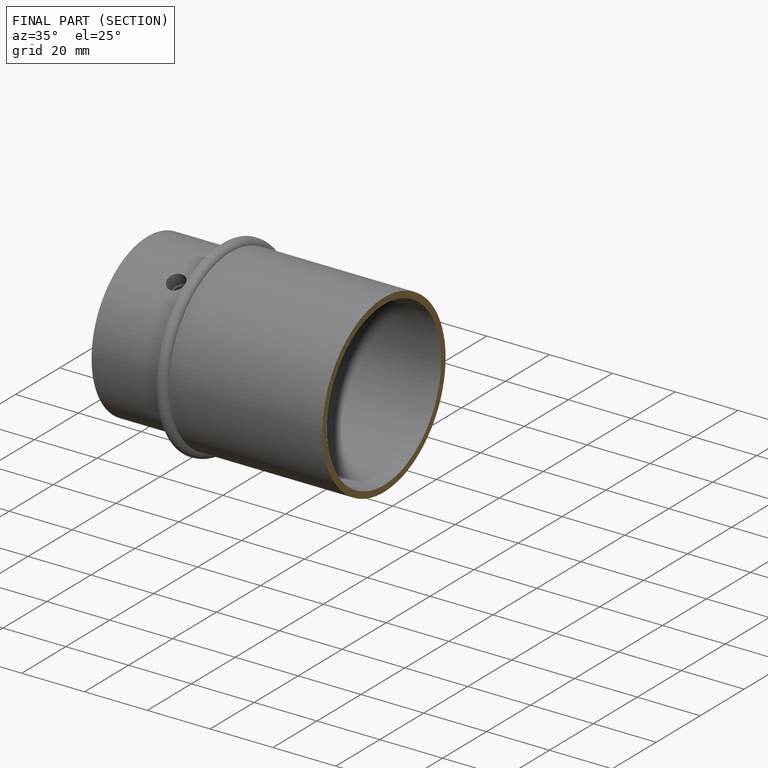
[diagram: finished part — half-section view (interior)]
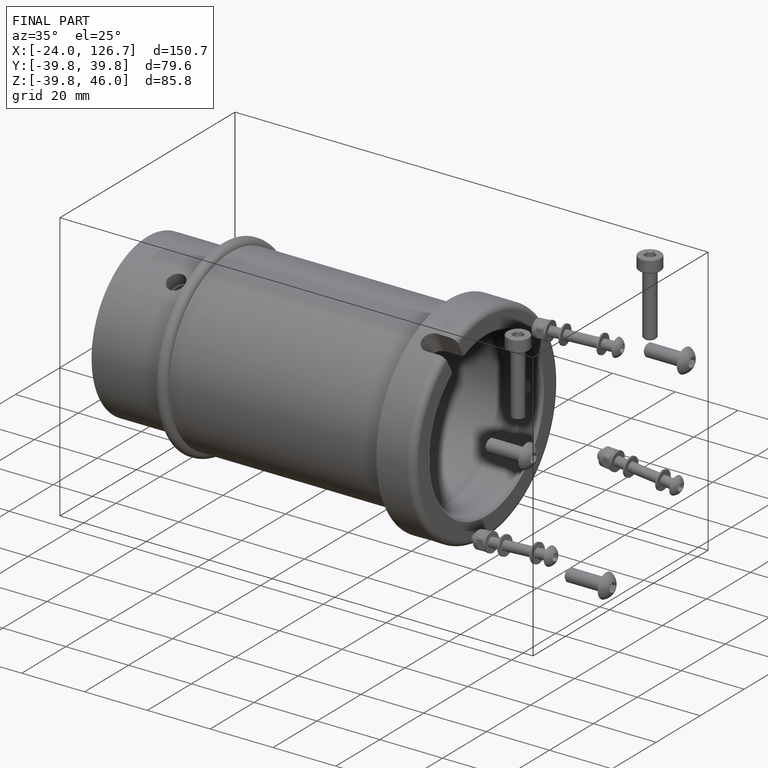
[diagram: finished part — iso view with bounding-box wireframe]
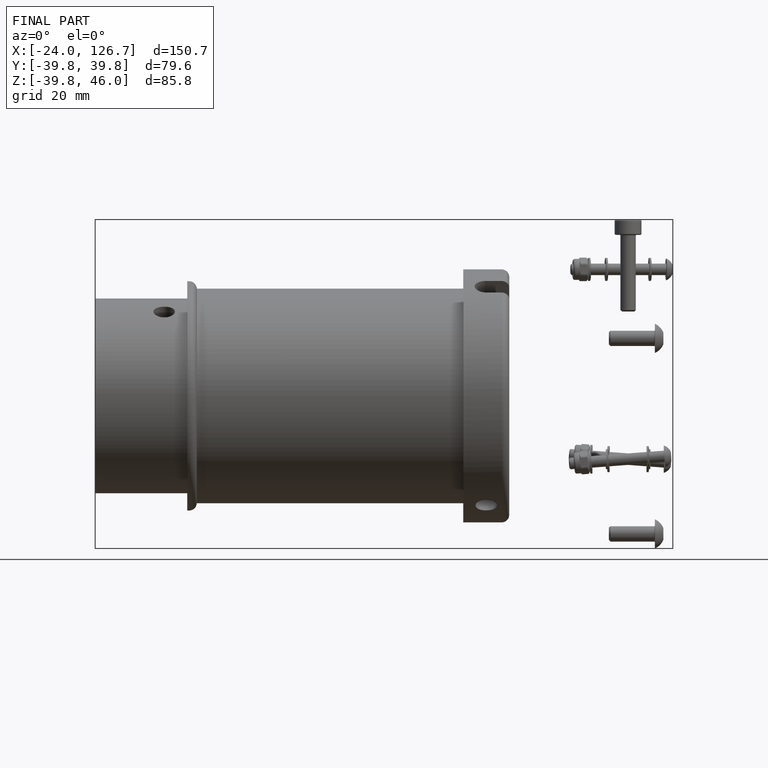
[diagram: finished part — front view with bounding-box wireframe]
